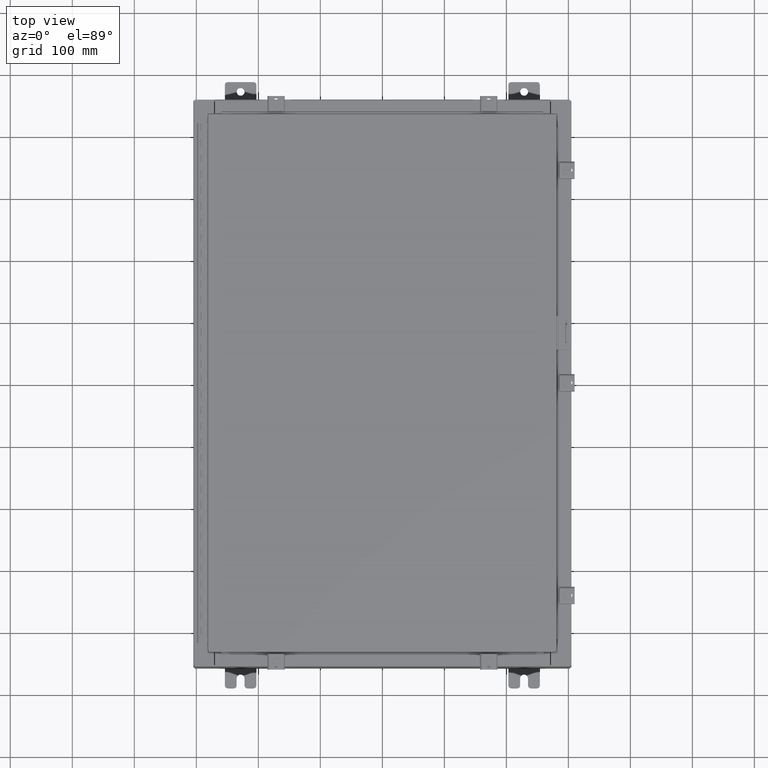
[diagram: clean part render]
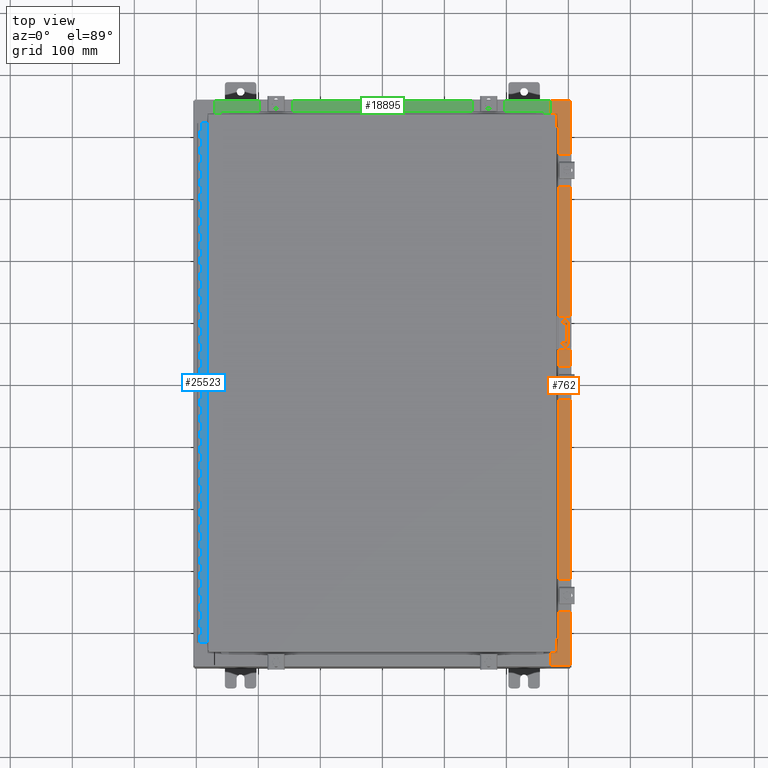
[diagram: same view with three faces highlighted in distinct colors, each labeled with its STEP entity id]
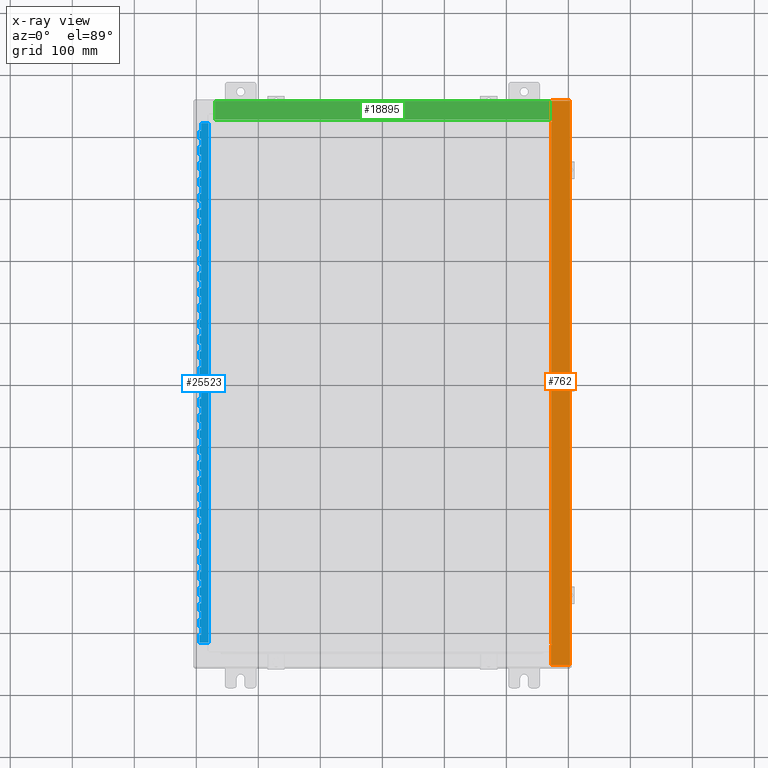
[diagram: x-ray of the same camera — body ghosted, the three highlighted faces saturated]
A machine part, top view with three faces highlighted in distinct colors.
The next image is the same camera in x-ray (body ghosted, the three faces saturated) — at least one of them is partly hidden behind the body in this view.
Their STEP definitions:

[orange] entity #762 — the highlighted planar face has unit normal (-0, 0, -1).
#32 = VECTOR ( 'NONE', #16691, 39.37007874015748100 ) ;
#381 = AXIS2_PLACEMENT_3D ( 'NONE', #24671, #11379, #2382 ) ;
#762 = ADVANCED_FACE ( 'NONE', ( #23455 ), #17547, .F. ) ;
#1069 = LINE ( 'NONE', #20008, #32 ) ;
#1349 = EDGE_CURVE ( 'NONE', #15026, #15097, #40199, .T. ) ;
#1432 = EDGE_CURVE ( 'NONE', #19509, #9743, #5526, .T. ) ;
#2382 = DIRECTION ( 'NONE',  ( 1.000000000000000000, 0.0000000000000000000, 0.0000000000000000000 ) ) ;
#3609 = ORIENTED_EDGE ( 'NONE', *, *, #4263, .F. ) ;
#3693 = LINE ( 'NONE', #3782, #21011 ) ;
#3700 = VERTEX_POINT ( 'NONE', #38121 ) ;
#3782 = CARTESIAN_POINT ( 'NONE',  ( 10.75005000000003000, 16.63110000000000000, 7.925300000000010700 ) ) ;
#4263 = EDGE_CURVE ( 'NONE', #15097, #24261, #16002, .T. ) ;
#4534 = VECTOR ( 'NONE', #8121, 39.37007874015748100 ) ;
#5321 = ORIENTED_EDGE ( 'NONE', *, *, #9215, .F. ) ;
#5526 = LINE ( 'NONE', #20749, #4534 ) ;
#5729 = ORIENTED_EDGE ( 'NONE', *, *, #18626, .F. ) ;
#6051 = CARTESIAN_POINT ( 'NONE',  ( 10.69970000000003000, -16.63110000000000400, 7.925300000000008900 ) ) ;
#6308 = EDGE_CURVE ( 'NONE', #8844, #11803, #34086, .T. ) ;
#7436 = ORIENTED_EDGE ( 'NONE', *, *, #23749, .T. ) ;
#7922 = AXIS2_PLACEMENT_3D ( 'NONE', #15535, #26376, #37503 ) ;
#8095 = ORIENTED_EDGE ( 'NONE', *, *, #16548, .T. ) ;
#8121 = DIRECTION ( 'NONE',  ( -2.156899250920150100E-031, -1.000000000000000000, 1.346156861557936900E-045 ) ) ;
#8662 = EDGE_CURVE ( 'NONE', #19509, #15026, #24215, .T. ) ;
#8844 = VERTEX_POINT ( 'NONE', #39529 ) ;
#9215 = EDGE_CURVE ( 'NONE', #24261, #35011, #14018, .T. ) ;
#9743 = VERTEX_POINT ( 'NONE', #29892 ) ;
#9954 = EDGE_CURVE ( 'NONE', #35011, #8844, #28762, .T. ) ;
#10320 = CARTESIAN_POINT ( 'NONE',  ( 11.91230000000002900, 17.92530000000000000, 7.925300000000000000 ) ) ;
#10561 = VECTOR ( 'NONE', #36896, 39.37007874015748100 ) ;
#11117 = DIRECTION ( 'NONE',  ( 6.241167087353086200E-015, 0.0000000000000000000, 1.000000000000000000 ) ) ;
#11278 = EDGE_CURVE ( 'NONE', #32628, #3700, #27119, .T. ) ;
#11379 = DIRECTION ( 'NONE',  ( 6.241167087353086200E-015, 0.0000000000000000000, 1.000000000000000000 ) ) ;
#11420 = EDGE_CURVE ( 'NONE', #11803, #38577, #3693, .T. ) ;
#11803 = VERTEX_POINT ( 'NONE', #31486 ) ;
#13677 = ORIENTED_EDGE ( 'NONE', *, *, #11420, .F. ) ;
#13881 = AXIS2_PLACEMENT_3D ( 'NONE', #16666, #11117, #19832 ) ;
#14018 = LINE ( 'NONE', #19429, #22692 ) ;
#14194 = ORIENTED_EDGE ( 'NONE', *, *, #11278, .T. ) ;
#15000 = VECTOR ( 'NONE', #28408, 39.37007874015748100 ) ;
#15026 = VERTEX_POINT ( 'NONE', #20168 ) ;
#15097 = VERTEX_POINT ( 'NONE', #36638 ) ;
#15535 = CARTESIAN_POINT ( 'NONE',  ( 4.972393517341145600E-014, 0.0000000000000000000, 7.925300000000073700 ) ) ;
#15756 = DIRECTION ( 'NONE',  ( 1.000000000000000000, 4.340572780400098900E-014, 4.340572780400098900E-014 ) ) ;
#16002 = LINE ( 'NONE', #34483, #15000 ) ;
#16548 = EDGE_CURVE ( 'NONE', #3700, #38577, #1069, .T. ) ;
#16554 = VECTOR ( 'NONE', #15756, 39.37007874015748100 ) ;
#16666 = CARTESIAN_POINT ( 'NONE',  ( 10.75005000000003000, 16.61242500000000200, 7.925300000000010700 ) ) ;
#16691 = DIRECTION ( 'NONE',  ( -2.156899250920150100E-031, -1.000000000000000000, 1.346156861557936900E-045 ) ) ;
#17393 = CARTESIAN_POINT ( 'NONE',  ( 11.91230000000002900, -17.92530000000000000, 7.925300000000000000 ) ) ;
#17531 = LINE ( 'NONE', #25142, #33818 ) ;
#17547 = PLANE ( 'NONE',  #7922 ) ;
#18626 = EDGE_CURVE ( 'NONE', #32628, #23854, #28947, .T. ) ;
#19139 = CARTESIAN_POINT ( 'NONE',  ( 11.91230000000002900, -17.92530000000000000, 7.925300000000000000 ) ) ;
#19429 = CARTESIAN_POINT ( 'NONE',  ( 10.71270000000003000, -16.59375000000000000, 7.925300000000010700 ) ) ;
#19509 = VERTEX_POINT ( 'NONE', #20534 ) ;
#19832 = DIRECTION ( 'NONE',  ( 1.000000000000000000, 0.0000000000000000000, 0.0000000000000000000 ) ) ;
#20008 = CARTESIAN_POINT ( 'NONE',  ( 10.69970000000003000, -2.307817491507028800E-030, 7.925300000000007100 ) ) ;
#20126 = VECTOR ( 'NONE', #40816, 39.37007874015748100 ) ;
#20168 = CARTESIAN_POINT ( 'NONE',  ( 10.75005000000003000, -16.63110000000000000, 7.925300000000007100 ) ) ;
#20380 = EDGE_LOOP ( 'NONE', ( #24575, #36397, #7436, #5729, #14194, #8095, #13677, #35384, #22162, #5321, #3609, #22367 ) ) ;
#20534 = CARTESIAN_POINT ( 'NONE',  ( 10.69970000000003000, -16.63110000000000400, 7.925300000000007100 ) ) ;
#20749 = CARTESIAN_POINT ( 'NONE',  ( 10.69970000000003000, -2.307817491507028800E-030, 7.925300000000007100 ) ) ;
#21011 = VECTOR ( 'NONE', #23266, 39.37007874015748100 ) ;
#21965 = CARTESIAN_POINT ( 'NONE',  ( 10.71270000000003000, 16.59375000000000000, 7.925300000000010700 ) ) ;
#22162 = ORIENTED_EDGE ( 'NONE', *, *, #9954, .F. ) ;
#22223 = CARTESIAN_POINT ( 'NONE',  ( 10.71270000000003000, -16.59375000000000000, 7.925300000000010700 ) ) ;
#22367 = ORIENTED_EDGE ( 'NONE', *, *, #1349, .F. ) ;
#22531 = CARTESIAN_POINT ( 'NONE',  ( 4.972393517341145600E-014, 17.92529999999999600, 7.925300000000073700 ) ) ;
#22685 = DIRECTION ( 'NONE',  ( -0.0000000000000000000, 1.000000000000000000, -0.0000000000000000000 ) ) ;
#22692 = VECTOR ( 'NONE', #22685, 39.37007874015748100 ) ;
#23266 = DIRECTION ( 'NONE',  ( -1.000000000000000000, 4.340572780400098900E-014, -4.340572780400098900E-014 ) ) ;
#23455 = FACE_OUTER_BOUND ( 'NONE', #20380, .T. ) ;
#23749 = EDGE_CURVE ( 'NONE', #9743, #23854, #17531, .T. ) ;
#23854 = VERTEX_POINT ( 'NONE', #19139 ) ;
#24215 = LINE ( 'NONE', #6051, #16554 ) ;
#24261 = VERTEX_POINT ( 'NONE', #22223 ) ;
#24575 = ORIENTED_EDGE ( 'NONE', *, *, #8662, .F. ) ;
#24671 = CARTESIAN_POINT ( 'NONE',  ( 10.75005000000003000, -16.61242500000000200, 7.925300000000010700 ) ) ;
#25142 = CARTESIAN_POINT ( 'NONE',  ( 1.775970877600283600E-014, -17.92529999999998200, 7.925300000000073700 ) ) ;
#26376 = DIRECTION ( 'NONE',  ( -6.241167087353086200E-015, 0.0000000000000000000, -1.000000000000000000 ) ) ;
#27119 = LINE ( 'NONE', #22531, #36794 ) ;
#28408 = DIRECTION ( 'NONE',  ( -1.000000000000000000, 0.0000000000000000000, 0.0000000000000000000 ) ) ;
#28410 = DIRECTION ( 'NONE',  ( 1.000000000000000000, -1.783190596386596200E-015, -6.241167087353087800E-015 ) ) ;
#28762 = LINE ( 'NONE', #37522, #20126 ) ;
#28947 = LINE ( 'NONE', #17393, #10561 ) ;
#29892 = CARTESIAN_POINT ( 'NONE',  ( 10.69970000000003000, -17.92530000000000000, 7.925300000000007100 ) ) ;
#31486 = CARTESIAN_POINT ( 'NONE',  ( 10.75005000000003000, 16.63110000000000000, 7.925300000000007100 ) ) ;
#32628 = VERTEX_POINT ( 'NONE', #10320 ) ;
#33818 = VECTOR ( 'NONE', #28410, 39.37007874015748100 ) ;
#34086 = CIRCLE ( 'NONE', #13881, 0.01867499999999949400 ) ;
#34483 = CARTESIAN_POINT ( 'NONE',  ( 10.75005000000003000, -16.59375000000000000, 7.925300000000010700 ) ) ;
#35011 = VERTEX_POINT ( 'NONE', #21965 ) ;
#35384 = ORIENTED_EDGE ( 'NONE', *, *, #6308, .F. ) ;
#36397 = ORIENTED_EDGE ( 'NONE', *, *, #1432, .T. ) ;
#36638 = CARTESIAN_POINT ( 'NONE',  ( 10.75005000000003000, -16.59375000000000000, 7.925300000000007100 ) ) ;
#36794 = VECTOR ( 'NONE', #42024, 39.37007874015748100 ) ;
#36896 = DIRECTION ( 'NONE',  ( -0.0000000000000000000, -1.000000000000000000, -0.0000000000000000000 ) ) ;
#37503 = DIRECTION ( 'NONE',  ( -1.000000000000000000, 0.0000000000000000000, 6.241167087353086200E-015 ) ) ;
#37522 = CARTESIAN_POINT ( 'NONE',  ( 10.71270000000003000, 16.59375000000000000, 7.925300000000010700 ) ) ;
#38121 = CARTESIAN_POINT ( 'NONE',  ( 10.69970000000003000, 17.92530000000000000, 7.925300000000007100 ) ) ;
#38577 = VERTEX_POINT ( 'NONE', #39374 ) ;
#39374 = CARTESIAN_POINT ( 'NONE',  ( 10.69970000000003000, 16.63110000000000000, 7.925300000000007100 ) ) ;
#39529 = CARTESIAN_POINT ( 'NONE',  ( 10.75005000000003000, 16.59375000000000000, 7.925300000000007100 ) ) ;
#40199 = CIRCLE ( 'NONE', #381, 0.01867499999999949400 ) ;
#40816 = DIRECTION ( 'NONE',  ( 1.000000000000000000, 0.0000000000000000000, 0.0000000000000000000 ) ) ;
#42024 = DIRECTION ( 'NONE',  ( -1.000000000000000000, 0.0000000000000000000, 6.241167087353087800E-015 ) ) ;

[blue] entity #25523 — the highlighted planar face has unit normal (-0, -0, 1).
#41 = ORIENTED_EDGE ( 'NONE', *, *, #41729, .T. ) ;
#152 = VECTOR ( 'NONE', #34740, 39.37007874015748100 ) ;
#165 = CARTESIAN_POINT ( 'NONE',  ( -0.6869999999999982800, 0.5504999999999997700, -16.50000000000000000 ) ) ;
#215 = CARTESIAN_POINT ( 'NONE',  ( -0.6869999999999978300, 0.6754999999999996600, -10.00000000000000000 ) ) ;
#287 = LINE ( 'NONE', #9806, #7873 ) ;
#292 = CARTESIAN_POINT ( 'NONE',  ( -0.6869999999999978300, 0.6754999999999996600, -33.00000000000000000 ) ) ;
#304 = LINE ( 'NONE', #31981, #32853 ) ;
#319 = CARTESIAN_POINT ( 'NONE',  ( -0.6869999999999973900, 0.8004999999999995500, -28.00000000000000000 ) ) ;
#406 = LINE ( 'NONE', #33760, #7989 ) ;
#463 = LINE ( 'NONE', #16387, #34033 ) ;
#507 = LINE ( 'NONE', #3140, #34079 ) ;
#520 = DIRECTION ( 'NONE',  ( 0.0000000000000000000, -0.0000000000000000000, -1.000000000000000000 ) ) ;
#582 = CARTESIAN_POINT ( 'NONE',  ( -0.6869999999999982800, 0.5504999999999997700, -19.00000000000000000 ) ) ;
#630 = DIRECTION ( 'NONE',  ( -3.389037039080723100E-015, -1.000000000000000000, 0.0000000000000000000 ) ) ;
#687 = VECTOR ( 'NONE', #30142, 39.37007874015748100 ) ;
#693 = LINE ( 'NONE', #10232, #34275 ) ;
#702 = CARTESIAN_POINT ( 'NONE',  ( -0.6869999999999978300, 0.6754999999999996600, -11.00000000000000000 ) ) ;
#735 = VECTOR ( 'NONE', #21113, 39.37007874015748100 ) ;
#740 = CARTESIAN_POINT ( 'NONE',  ( -0.6869999999999978300, 0.6754999999999996600, -8.500000000000000000 ) ) ;
#774 = VERTEX_POINT ( 'NONE', #17403 ) ;
#813 = VERTEX_POINT ( 'NONE', #14828 ) ;
#855 = VERTEX_POINT ( 'NONE', #1551 ) ;
#885 = ORIENTED_EDGE ( 'NONE', *, *, #4816, .F. ) ;
#893 = CARTESIAN_POINT ( 'NONE',  ( -0.6869999999999973900, 0.8004999999999995500, -23.99999999999999600 ) ) ;
#902 = LINE ( 'NONE', #20030, #34481 ) ;
#996 = VECTOR ( 'NONE', #2097, 39.37007874015748100 ) ;
#1159 = CARTESIAN_POINT ( 'NONE',  ( -0.6869999999999978300, 0.6754999999999996600, -20.50000000000000400 ) ) ;
#1175 = EDGE_CURVE ( 'NONE', #38455, #19843, #32058, .T. ) ;
#1225 = VECTOR ( 'NONE', #10847, 39.37007874015748100 ) ;
#1285 = CARTESIAN_POINT ( 'NONE',  ( -0.6869999999999973900, 0.8004999999999995500, -1.000000000000000000 ) ) ;
#1291 = EDGE_CURVE ( 'NONE', #7446, #6601, #9577, .T. ) ;
#1304 = CARTESIAN_POINT ( 'NONE',  ( -0.6869999999999978300, 0.6754999999999996600, -17.00000000000000000 ) ) ;
#1313 = VERTEX_POINT ( 'NONE', #1159 ) ;
#1351 = VECTOR ( 'NONE', #30929, 39.37007874015748100 ) ;
#1375 = VECTOR ( 'NONE', #26189, 39.37007874015748100 ) ;
#1417 = CARTESIAN_POINT ( 'NONE',  ( -0.6869999999999978300, 0.6754999999999996600, -3.500000000000000000 ) ) ;
#1441 = CARTESIAN_POINT ( 'NONE',  ( -0.6869999999999982800, 0.5504999999999997700, -31.50000000000000400 ) ) ;
#1482 = ORIENTED_EDGE ( 'NONE', *, *, #24487, .F. ) ;
#1541 = CARTESIAN_POINT ( 'NONE',  ( -0.6869999999999982800, 0.5504999999999997700, -10.50000000000000000 ) ) ;
#1551 = CARTESIAN_POINT ( 'NONE',  ( -0.6869999999999982800, 0.5504999999999997700, -24.99999999999999600 ) ) ;
#1584 = VERTEX_POINT ( 'NONE', #14635 ) ;
#1661 = VECTOR ( 'NONE', #28451, 39.37007874015748100 ) ;
#1726 = EDGE_CURVE ( 'NONE', #39461, #26093, #11597, .T. ) ;
#1728 = ORIENTED_EDGE ( 'NONE', *, *, #16686, .F. ) ;
#1843 = VECTOR ( 'NONE', #15722, 39.37007874015748100 ) ;
#1859 = EDGE_CURVE ( 'NONE', #28584, #36615, #16178, .T. ) ;
#1949 = VERTEX_POINT ( 'NONE', #5631 ) ;
#2007 = VECTOR ( 'NONE', #2210, 39.37007874015748100 ) ;
#2058 = EDGE_LOOP ( 'NONE', ( #40230, #19891, #27045, #16317, #4327, #885, #41833, #34841, #10707, #21773, #3247, #33384, #2263, #31070, #22458, #25493, #40780, #18564, #32898, #14308, #32311, #17876, #30526, #1728, #6032, #25631, #4528, #20908, #15273, #5575, #17526, #41039, #21437, #35840, #7628, #37598, #9754, #7852, #40388, #12587, #41, #14735, #39271, #16723, #5845, #12193, #41033, #32069, #35034, #15889, #35368, #21492, #2460, #2101, #18228, #19376, #9729, #21627, #14565, #8601, #13755, #8500, #14861, #33796, #36241, #17178, #23402, #16651, #41730, #36255, #19066, #21681, #18800, #36161, #22230, #38055, #32247, #10280, #22228, #26892, #23776, #22875, #12268, #16468, #10427, #3813, #13685, #11996, #16699, #3727, #25070, #29960, #10025, #13524, #12612, #3682, #9308, #25213, #25194, #6033, #34427, #9029, #35763, #39824, #2430, #38078, #29333, #1482, #29187, #40412, #5314, #3365, #38116, #31851, #22291, #25566, #20957, #34472, #22264, #35426, #42132, #31624, #31230, #11359, #18578, #28941, #21630, #20339, #21952, #10682, #40576, #21635, #25791, #14618 ) ) ;
#2088 = CARTESIAN_POINT ( 'NONE',  ( -0.6869999999999973900, 0.8004999999999995500, -26.50000000000000400 ) ) ;
#2097 = DIRECTION ( 'NONE',  ( -3.389037039080723100E-015, -1.000000000000000000, 0.0000000000000000000 ) ) ;
#2101 = ORIENTED_EDGE ( 'NONE', *, *, #24960, .F. ) ;
#2156 = DIRECTION ( 'NONE',  ( 0.0000000000000000000, -0.0000000000000000000, -1.000000000000000000 ) ) ;
#2162 = VERTEX_POINT ( 'NONE', #16780 ) ;
#2210 = DIRECTION ( 'NONE',  ( 3.389037039080723100E-015, 1.000000000000000000, -0.0000000000000000000 ) ) ;
#2263 = ORIENTED_EDGE ( 'NONE', *, *, #13130, .T. ) ;
#2282 = VECTOR ( 'NONE', #19729, 39.37007874015748100 ) ;
#2322 = CARTESIAN_POINT ( 'NONE',  ( -0.6869999999999973900, 0.8004999999999995500, -14.00000000000000000 ) ) ;
#2424 = LINE ( 'NONE', #13816, #36002 ) ;
#2430 = ORIENTED_EDGE ( 'NONE', *, *, #8108, .T. ) ;
#2434 = CARTESIAN_POINT ( 'NONE',  ( -0.6869999999999982800, 0.5504999999999997700, -23.99999999999999600 ) ) ;
#2460 = ORIENTED_EDGE ( 'NONE', *, *, #22516, .T. ) ;
#2465 = DIRECTION ( 'NONE',  ( 0.0000000000000000000, 0.0000000000000000000, 1.000000000000000000 ) ) ;
#2497 = CARTESIAN_POINT ( 'NONE',  ( -0.6869999999999982800, 0.5504999999999997700, -15.50000000000000000 ) ) ;
#2532 = VERTEX_POINT ( 'NONE', #17960 ) ;
#2534 = VECTOR ( 'NONE', #19800, 39.37007874015748100 ) ;
#2552 = CARTESIAN_POINT ( 'NONE',  ( -0.6869999999999973900, 0.8004999999999995500, -2.999999999999999600 ) ) ;
#2556 = DIRECTION ( 'NONE',  ( -3.389037039080723100E-015, -1.000000000000000000, 0.0000000000000000000 ) ) ;
#2574 = VERTEX_POINT ( 'NONE', #34175 ) ;
#2585 = CARTESIAN_POINT ( 'NONE',  ( -0.6869999999999982800, 0.5504999999999997700, -1.499999999999999800 ) ) ;
#2649 = LINE ( 'NONE', #25049, #18931 ) ;
#2692 = LINE ( 'NONE', #28794, #20022 ) ;
#2812 = EDGE_CURVE ( 'NONE', #22689, #22355, #33438, .T. ) ;
#2911 = EDGE_CURVE ( 'NONE', #18476, #22689, #38013, .T. ) ;
#2930 = CARTESIAN_POINT ( 'NONE',  ( -0.6869999999999978300, 0.6754999999999996600, -20.00000000000000000 ) ) ;
#3015 = LINE ( 'NONE', #32979, #36611 ) ;
#3025 = CARTESIAN_POINT ( 'NONE',  ( -0.6869999999999978300, 0.6754999999999996600, -33.00000000000000000 ) ) ;
#3132 = LINE ( 'NONE', #893, #36718 ) ;
#3140 = CARTESIAN_POINT ( 'NONE',  ( -0.6869999999999973900, 0.8004999999999995500, -10.50000000000000000 ) ) ;
#3247 = ORIENTED_EDGE ( 'NONE', *, *, #1175, .F. ) ;
#3261 = LINE ( 'NONE', #21119, #11871 ) ;
#3285 = LINE ( 'NONE', #29396, #2282 ) ;
#3365 = ORIENTED_EDGE ( 'NONE', *, *, #37507, .F. ) ;
#3372 = EDGE_CURVE ( 'NONE', #32911, #28775, #15077, .T. ) ;
#3379 = LINE ( 'NONE', #20155, #19656 ) ;
#3407 = CARTESIAN_POINT ( 'NONE',  ( -0.6869999999999982800, 0.5504999999999997700, -26.00000000000000000 ) ) ;
#3413 = CARTESIAN_POINT ( 'NONE',  ( -0.6869999999999982800, 0.5504999999999997700, -23.50000000000000000 ) ) ;
#3436 = EDGE_CURVE ( 'NONE', #33718, #28584, #3379, .T. ) ;
#3483 = EDGE_CURVE ( 'NONE', #38132, #2162, #18631, .T. ) ;
#3501 = CARTESIAN_POINT ( 'NONE',  ( -0.6869999999999982800, 0.5504999999999997700, -2.000000000000000000 ) ) ;
#3518 = VERTEX_POINT ( 'NONE', #7429 ) ;
#3584 = VECTOR ( 'NONE', #35742, 39.37007874015748100 ) ;
#3622 = EDGE_CURVE ( 'NONE', #39669, #5471, #39518, .T. ) ;
#3682 = ORIENTED_EDGE ( 'NONE', *, *, #25760, .F. ) ;
#3697 = VECTOR ( 'NONE', #25552, 39.37007874015748100 ) ;
#3722 = CARTESIAN_POINT ( 'NONE',  ( -0.6869999999999978300, 0.6754999999999996600, -13.50000000000000000 ) ) ;
#3727 = ORIENTED_EDGE ( 'NONE', *, *, #39526, .F. ) ;
#3729 = EDGE_CURVE ( 'NONE', #29135, #10410, #26754, .T. ) ;
#3755 = LINE ( 'NONE', #27208, #20057 ) ;
#3790 = VECTOR ( 'NONE', #41987, 39.37007874015748100 ) ;
#3811 = VECTOR ( 'NONE', #13302, 39.37007874015748100 ) ;
#3813 = ORIENTED_EDGE ( 'NONE', *, *, #36751, .F. ) ;
#3863 = VECTOR ( 'NONE', #40057, 39.37007874015748100 ) ;
#3932 = CARTESIAN_POINT ( 'NONE',  ( -0.6869999999999982800, 0.5504999999999997700, -17.00000000000000000 ) ) ;
#4022 = VERTEX_POINT ( 'NONE', #23860 ) ;
#4071 = CARTESIAN_POINT ( 'NONE',  ( -0.6869999999999978300, 0.6754999999999996600, -33.00000000000000000 ) ) ;
#4149 = DIRECTION ( 'NONE',  ( 3.389037039080723100E-015, 1.000000000000000000, -0.0000000000000000000 ) ) ;
#4203 = DIRECTION ( 'NONE',  ( 0.0000000000000000000, -0.0000000000000000000, -1.000000000000000000 ) ) ;
#4210 = VECTOR ( 'NONE', #7107, 39.37007874015748100 ) ;
#4271 = CARTESIAN_POINT ( 'NONE',  ( -0.6869999999999978300, 0.6754999999999996600, -17.99999999999999600 ) ) ;
#4316 = DIRECTION ( 'NONE',  ( 3.389037039080723100E-015, 1.000000000000000000, -0.0000000000000000000 ) ) ;
#4327 = ORIENTED_EDGE ( 'NONE', *, *, #15019, .T. ) ;
#4351 = EDGE_CURVE ( 'NONE', #2532, #9450, #36880, .T. ) ;
#4363 = LINE ( 'NONE', #21504, #21652 ) ;
#4399 = LINE ( 'NONE', #30375, #20704 ) ;
#4401 = LINE ( 'NONE', #12521, #19675 ) ;
#4526 = DIRECTION ( 'NONE',  ( 3.389037039080723100E-015, 1.000000000000000000, -0.0000000000000000000 ) ) ;
#4528 = ORIENTED_EDGE ( 'NONE', *, *, #20712, .F. ) ;
#4576 = DIRECTION ( 'NONE',  ( -3.389037039080723100E-015, -1.000000000000000000, 0.0000000000000000000 ) ) ;
#4676 = LINE ( 'NONE', #27934, #20975 ) ;
#4683 = EDGE_CURVE ( 'NONE', #15349, #42136, #31280, .T. ) ;
#4816 = EDGE_CURVE ( 'NONE', #23728, #774, #28200, .T. ) ;
#4838 = DIRECTION ( 'NONE',  ( 0.0000000000000000000, 0.0000000000000000000, 1.000000000000000000 ) ) ;
#4842 = DIRECTION ( 'NONE',  ( 3.389037039080723100E-015, 1.000000000000000000, -0.0000000000000000000 ) ) ;
#4891 = VECTOR ( 'NONE', #23390, 39.37007874015748100 ) ;
#4904 = EDGE_CURVE ( 'NONE', #29135, #5176, #16437, .T. ) ;
#4922 = VERTEX_POINT ( 'NONE', #20726 ) ;
#5018 = DIRECTION ( 'NONE',  ( 0.0000000000000000000, -0.0000000000000000000, -1.000000000000000000 ) ) ;
#5032 = EDGE_CURVE ( 'NONE', #36037, #36126, #26634, .T. ) ;
#5078 = EDGE_CURVE ( 'NONE', #7164, #34391, #16954, .T. ) ;
#5176 = VERTEX_POINT ( 'NONE', #13995 ) ;
#5206 = CARTESIAN_POINT ( 'NONE',  ( -0.6869999999999982800, 0.5504999999999997700, -5.000000000000000000 ) ) ;
#5213 = DIRECTION ( 'NONE',  ( -3.389037039080723100E-015, -1.000000000000000000, 0.0000000000000000000 ) ) ;
#5241 = VECTOR ( 'NONE', #36225, 39.37007874015748100 ) ;
#5314 = ORIENTED_EDGE ( 'NONE', *, *, #35516, .F. ) ;
#5316 = DIRECTION ( 'NONE',  ( -3.389037039080723100E-015, -1.000000000000000000, 0.0000000000000000000 ) ) ;
#5357 = EDGE_CURVE ( 'NONE', #5700, #22123, #7307, .T. ) ;
#5382 = VECTOR ( 'NONE', #34682, 39.37007874015748100 ) ;
#5471 = VERTEX_POINT ( 'NONE', #30662 ) ;
#5522 = DIRECTION ( 'NONE',  ( 3.389037039080723100E-015, 1.000000000000000000, -0.0000000000000000000 ) ) ;
#5575 = ORIENTED_EDGE ( 'NONE', *, *, #1726, .F. ) ;
#5602 = VERTEX_POINT ( 'NONE', #36562 ) ;
#5604 = CARTESIAN_POINT ( 'NONE',  ( -0.6869999999999982800, 0.5504999999999997700, -8.500000000000000000 ) ) ;
#5609 = CARTESIAN_POINT ( 'NONE',  ( -0.6869999999999982800, 0.5504999999999997700, -22.00000000000000000 ) ) ;
#5631 = CARTESIAN_POINT ( 'NONE',  ( -0.6869999999999982800, 0.5504999999999997700, -21.00000000000000000 ) ) ;
#5665 = LINE ( 'NONE', #34017, #39316 ) ;
#5694 = EDGE_CURVE ( 'NONE', #19843, #18383, #3755, .T. ) ;
#5700 = VERTEX_POINT ( 'NONE', #22455 ) ;
#5780 = DIRECTION ( 'NONE',  ( 3.389037039080723100E-015, 1.000000000000000000, -0.0000000000000000000 ) ) ;
#5807 = CARTESIAN_POINT ( 'NONE',  ( -0.6869999999999982800, 0.5504999999999997700, -4.500000000000000000 ) ) ;
#5824 = EDGE_CURVE ( 'NONE', #19609, #24977, #35311, .T. ) ;
#5845 = ORIENTED_EDGE ( 'NONE', *, *, #3729, .T. ) ;
#5871 = LINE ( 'NONE', #20144, #4891 ) ;
#5926 = VERTEX_POINT ( 'NONE', #582 ) ;
#6001 = DIRECTION ( 'NONE',  ( 0.0000000000000000000, 0.0000000000000000000, 1.000000000000000000 ) ) ;
#6032 = ORIENTED_EDGE ( 'NONE', *, *, #27534, .T. ) ;
#6033 = ORIENTED_EDGE ( 'NONE', *, *, #26362, .F. ) ;
#6059 = EDGE_CURVE ( 'NONE', #8329, #855, #33733, .T. ) ;
#6062 = EDGE_CURVE ( 'NONE', #8229, #2574, #26102, .T. ) ;
#6135 = EDGE_CURVE ( 'NONE', #33335, #16429, #25100, .T. ) ;
#6253 = CARTESIAN_POINT ( 'NONE',  ( -0.6869999999999978300, 0.6754999999999996600, -1.499999999999999800 ) ) ;
#6413 = VERTEX_POINT ( 'NONE', #30376 ) ;
#6456 = DIRECTION ( 'NONE',  ( 3.389037039080723100E-015, 1.000000000000000000, -0.0000000000000000000 ) ) ;
#6467 = CARTESIAN_POINT ( 'NONE',  ( -0.6869999999999982800, 0.5504999999999997700, -25.50000000000000400 ) ) ;
#6483 = EDGE_CURVE ( 'NONE', #1313, #18506, #18299, .T. ) ;
#6510 = CARTESIAN_POINT ( 'NONE',  ( -0.6869999999999973900, 0.8004999999999995500, -17.99999999999999600 ) ) ;
#6555 = LINE ( 'NONE', #29193, #30553 ) ;
#6601 = VERTEX_POINT ( 'NONE', #38899 ) ;
#6652 = CARTESIAN_POINT ( 'NONE',  ( -0.6869999999999982800, 0.5504999999999997700, -1.000000000000000000 ) ) ;
#6659 = CARTESIAN_POINT ( 'NONE',  ( -0.6869999999999978300, 0.6754999999999996600, -33.00000000000000000 ) ) ;
#6764 = EDGE_CURVE ( 'NONE', #9071, #8329, #34034, .T. ) ;
#6782 = CARTESIAN_POINT ( 'NONE',  ( -0.6869999999999982800, 0.5504999999999997700, -3.500000000000000000 ) ) ;
#6828 = CARTESIAN_POINT ( 'NONE',  ( -0.6869999999999978300, 0.6754999999999996600, -5.500000000000000000 ) ) ;
#6864 = VERTEX_POINT ( 'NONE', #32538 ) ;
#6867 = CARTESIAN_POINT ( 'NONE',  ( -0.6869999999999982800, 0.5504999999999997700, -28.50000000000000000 ) ) ;
#6978 = VECTOR ( 'NONE', #33906, 39.37007874015748100 ) ;
#6993 = DIRECTION ( 'NONE',  ( 0.0000000000000000000, -0.0000000000000000000, -1.000000000000000000 ) ) ;
#7061 = VECTOR ( 'NONE', #13777, 39.37007874015748100 ) ;
#7107 = DIRECTION ( 'NONE',  ( -3.389037039080723100E-015, -1.000000000000000000, 0.0000000000000000000 ) ) ;
#7139 = DIRECTION ( 'NONE',  ( 0.0000000000000000000, 0.0000000000000000000, 1.000000000000000000 ) ) ;
#7164 = VERTEX_POINT ( 'NONE', #37357 ) ;
#7203 = CARTESIAN_POINT ( 'NONE',  ( -0.6869999999999978300, 0.6754999999999996600, -33.00000000000000000 ) ) ;
#7307 = LINE ( 'NONE', #165, #735 ) ;
#7345 = VERTEX_POINT ( 'NONE', #25402 ) ;
#7423 = VECTOR ( 'NONE', #630, 39.37007874015748100 ) ;
#7429 = CARTESIAN_POINT ( 'NONE',  ( -0.6869999999999978300, 0.6754999999999996600, -5.000000000000000000 ) ) ;
#7446 = VERTEX_POINT ( 'NONE', #32353 ) ;
#7462 = VERTEX_POINT ( 'NONE', #32483 ) ;
#7505 = VERTEX_POINT ( 'NONE', #215 ) ;
#7548 = CARTESIAN_POINT ( 'NONE',  ( -0.6869999999999978300, 0.6754999999999996600, -2.999999999999999600 ) ) ;
#7623 = VECTOR ( 'NONE', #28645, 39.37007874015748100 ) ;
#7628 = ORIENTED_EDGE ( 'NONE', *, *, #6059, .F. ) ;
#7630 = EDGE_CURVE ( 'NONE', #30342, #9124, #2424, .T. ) ;
#7747 = VECTOR ( 'NONE', #40863, 39.37007874015748100 ) ;
#7852 = ORIENTED_EDGE ( 'NONE', *, *, #12150, .F. ) ;
#7873 = VECTOR ( 'NONE', #16231, 39.37007874015748100 ) ;
#7947 = EDGE_CURVE ( 'NONE', #31212, #13938, #32404, .T. ) ;
#7989 = VECTOR ( 'NONE', #14245, 39.37007874015748100 ) ;
#8108 = EDGE_CURVE ( 'NONE', #12408, #36957, #18652, .T. ) ;
#8128 = EDGE_CURVE ( 'NONE', #31940, #26093, #34956, .T. ) ;
#8229 = VERTEX_POINT ( 'NONE', #740 ) ;
#8236 = DIRECTION ( 'NONE',  ( 3.389037039080723100E-015, 1.000000000000000000, -0.0000000000000000000 ) ) ;
#8251 = VECTOR ( 'NONE', #2556, 39.37007874015748100 ) ;
#8288 = DIRECTION ( 'NONE',  ( 0.0000000000000000000, -0.0000000000000000000, -1.000000000000000000 ) ) ;
#8295 = LINE ( 'NONE', #13095, #33259 ) ;
#8329 = VERTEX_POINT ( 'NONE', #20653 ) ;
#8333 = CARTESIAN_POINT ( 'NONE',  ( -0.6869999999999973900, 0.8004999999999995500, -1.499999999999999800 ) ) ;
#8374 = VERTEX_POINT ( 'NONE', #1304 ) ;
#8427 = EDGE_CURVE ( 'NONE', #13669, #23728, #34421, .T. ) ;
#8443 = EDGE_CURVE ( 'NONE', #34811, #29942, #16064, .T. ) ;
#8446 = LINE ( 'NONE', #39478, #7423 ) ;
#8476 = VECTOR ( 'NONE', #4316, 39.37007874015748100 ) ;
#8500 = ORIENTED_EDGE ( 'NONE', *, *, #28668, .F. ) ;
#8515 = CARTESIAN_POINT ( 'NONE',  ( -0.6869999999999982800, 0.5504999999999997700, -12.99999999999999800 ) ) ;
#8601 = ORIENTED_EDGE ( 'NONE', *, *, #5824, .F. ) ;
#8615 = EDGE_CURVE ( 'NONE', #21284, #18621, #9904, .T. ) ;
#8630 = LINE ( 'NONE', #18822, #33609 ) ;
#8639 = EDGE_CURVE ( 'NONE', #28999, #38467, #304, .T. ) ;
#8710 = DIRECTION ( 'NONE',  ( -3.389037039080723100E-015, -1.000000000000000000, 0.0000000000000000000 ) ) ;
#8729 = CARTESIAN_POINT ( 'NONE',  ( -0.6869999999999982800, 0.5504999999999997700, -32.00000000000000000 ) ) ;
#8815 = DIRECTION ( 'NONE',  ( 3.389037039080723100E-015, 1.000000000000000000, -0.0000000000000000000 ) ) ;
#8816 = VERTEX_POINT ( 'NONE', #13278 ) ;
#8862 = CARTESIAN_POINT ( 'NONE',  ( -0.6869999999999978300, 0.6754999999999996600, -24.99999999999999600 ) ) ;
#8910 = DIRECTION ( 'NONE',  ( -3.389037039080723100E-015, -1.000000000000000000, 0.0000000000000000000 ) ) ;
#8961 = EDGE_CURVE ( 'NONE', #5176, #4922, #22642, .T. ) ;
#9001 = CARTESIAN_POINT ( 'NONE',  ( -0.6869999999999978300, 0.6754999999999996600, -31.50000000000000400 ) ) ;
#9029 = ORIENTED_EDGE ( 'NONE', *, *, #23626, .F. ) ;
#9057 = DIRECTION ( 'NONE',  ( 0.0000000000000000000, -0.0000000000000000000, -1.000000000000000000 ) ) ;
#9071 = VERTEX_POINT ( 'NONE', #15453 ) ;
#9099 = CARTESIAN_POINT ( 'NONE',  ( -0.6869999999999978300, 0.6754999999999996600, -33.00000000000000000 ) ) ;
#9124 = VERTEX_POINT ( 'NONE', #31955 ) ;
#9177 = DIRECTION ( 'NONE',  ( 0.0000000000000000000, 0.0000000000000000000, 1.000000000000000000 ) ) ;
#9246 = LINE ( 'NONE', #28585, #8251 ) ;
#9308 = ORIENTED_EDGE ( 'NONE', *, *, #31673, .T. ) ;
#9450 = VERTEX_POINT ( 'NONE', #10970 ) ;
#9577 = LINE ( 'NONE', #27657, #34594 ) ;
#9705 = EDGE_CURVE ( 'NONE', #14274, #39247, #20646, .T. ) ;
#9729 = ORIENTED_EDGE ( 'NONE', *, *, #35079, .T. ) ;
#9733 = CARTESIAN_POINT ( 'NONE',  ( -0.6869999999999973900, 0.8004999999999995500, -0.5000000000000000000 ) ) ;
#9754 = ORIENTED_EDGE ( 'NONE', *, *, #22863, .T. ) ;
#9769 = FACE_OUTER_BOUND ( 'NONE', #2058, .T. ) ;
#9778 = DIRECTION ( 'NONE',  ( 3.389037039080723100E-015, 1.000000000000000000, -0.0000000000000000000 ) ) ;
#9806 = CARTESIAN_POINT ( 'NONE',  ( -0.6869999999999973900, 0.8004999999999995500, -5.000000000000000000 ) ) ;
#9855 = DIRECTION ( 'NONE',  ( 3.389037039080723100E-015, 1.000000000000000000, -0.0000000000000000000 ) ) ;
#9856 = VECTOR ( 'NONE', #15510, 39.37007874015748100 ) ;
#9904 = LINE ( 'NONE', #2552, #26251 ) ;
#9944 = CARTESIAN_POINT ( 'NONE',  ( -0.6869999999999982800, 0.5504999999999997700, -2.500000000000000000 ) ) ;
#9945 = VECTOR ( 'NONE', #29927, 39.37007874015748100 ) ;
#9978 = CARTESIAN_POINT ( 'NONE',  ( -0.6869999999999973900, 0.8004999999999995500, -2.500000000000000000 ) ) ;
#10009 = CARTESIAN_POINT ( 'NONE',  ( -0.6869999999999978300, 0.6754999999999996600, -9.000000000000000000 ) ) ;
#10025 = ORIENTED_EDGE ( 'NONE', *, *, #13025, .T. ) ;
#10232 = CARTESIAN_POINT ( 'NONE',  ( -0.6869999999999978300, 0.6754999999999996600, -33.00000000000000000 ) ) ;
#10234 = LINE ( 'NONE', #25186, #34203 ) ;
#10258 = EDGE_CURVE ( 'NONE', #39669, #18621, #3285, .T. ) ;
#10280 = ORIENTED_EDGE ( 'NONE', *, *, #2812, .F. ) ;
#10281 = VERTEX_POINT ( 'NONE', #3501 ) ;
#10305 = LINE ( 'NONE', #32894, #35307 ) ;
#10403 = CARTESIAN_POINT ( 'NONE',  ( -0.6869999999999982800, 0.5504999999999997700, -30.50000000000000400 ) ) ;
#10410 = VERTEX_POINT ( 'NONE', #23703 ) ;
#10427 = ORIENTED_EDGE ( 'NONE', *, *, #34129, .T. ) ;
#10430 = VECTOR ( 'NONE', #8236, 39.37007874015748100 ) ;
#10434 = LINE ( 'NONE', #35305, #36446 ) ;
#10462 = VECTOR ( 'NONE', #41568, 39.37007874015748100 ) ;
#10489 = CARTESIAN_POINT ( 'NONE',  ( -0.6870000000000022800, -0.6245000000000003900, 0.0000000000000000000 ) ) ;
#10500 = EDGE_CURVE ( 'NONE', #28999, #30788, #27699, .T. ) ;
#10579 = LINE ( 'NONE', #37755, #2007 ) ;
#10619 = VECTOR ( 'NONE', #37129, 39.37007874015748100 ) ;
#10680 = LINE ( 'NONE', #32655, #35674 ) ;
#10682 = ORIENTED_EDGE ( 'NONE', *, *, #41423, .F. ) ;
#10707 = ORIENTED_EDGE ( 'NONE', *, *, #27875, .T. ) ;
#10847 = DIRECTION ( 'NONE',  ( 3.389037039080723100E-015, 1.000000000000000000, -0.0000000000000000000 ) ) ;
#10926 = DIRECTION ( 'NONE',  ( 0.0000000000000000000, 0.0000000000000000000, 1.000000000000000000 ) ) ;
#10930 = CARTESIAN_POINT ( 'NONE',  ( -0.6869999999999978300, 0.6754999999999996600, -33.00000000000000000 ) ) ;
#10970 = CARTESIAN_POINT ( 'NONE',  ( -0.6869999999999978300, 0.6754999999999996600, -4.000000000000000000 ) ) ;
#11109 = CARTESIAN_POINT ( 'NONE',  ( -0.6869999999999973900, 0.8004999999999995500, -22.50000000000000000 ) ) ;
#11220 = DIRECTION ( 'NONE',  ( 0.0000000000000000000, -0.0000000000000000000, -1.000000000000000000 ) ) ;
#11238 = DIRECTION ( 'NONE',  ( 0.0000000000000000000, -0.0000000000000000000, -1.000000000000000000 ) ) ;
#11359 = ORIENTED_EDGE ( 'NONE', *, *, #29827, .F. ) ;
#11364 = DIRECTION ( 'NONE',  ( 0.0000000000000000000, -0.0000000000000000000, -1.000000000000000000 ) ) ;
#11443 = CARTESIAN_POINT ( 'NONE',  ( -0.6869999999999982800, 0.5504999999999997700, -14.49999999999999800 ) ) ;
#11540 = CARTESIAN_POINT ( 'NONE',  ( -0.6869999999999982800, 0.5504999999999997700, -27.50000000000000000 ) ) ;
#11580 = DIRECTION ( 'NONE',  ( -3.389037039080723100E-015, -1.000000000000000000, 0.0000000000000000000 ) ) ;
#11587 = EDGE_CURVE ( 'NONE', #855, #38467, #41838, .T. ) ;
#11597 = LINE ( 'NONE', #17190, #37606 ) ;
#11748 = LINE ( 'NONE', #6510, #36720 ) ;
#11763 = CARTESIAN_POINT ( 'NONE',  ( -0.6869999999999973900, 0.8004999999999995500, -29.99999999999999600 ) ) ;
#11842 = EDGE_CURVE ( 'NONE', #18852, #7345, #32661, .T. ) ;
#11871 = VECTOR ( 'NONE', #40612, 39.37007874015748100 ) ;
#11907 = DIRECTION ( 'NONE',  ( -3.389037039080723100E-015, -1.000000000000000000, 0.0000000000000000000 ) ) ;
#11923 = VECTOR ( 'NONE', #26454, 39.37007874015748100 ) ;
#11996 = ORIENTED_EDGE ( 'NONE', *, *, #31920, .F. ) ;
#12150 = EDGE_CURVE ( 'NONE', #39247, #34135, #3132, .T. ) ;
#12161 = LINE ( 'NONE', #25923, #3584 ) ;
#12182 = CARTESIAN_POINT ( 'NONE',  ( -0.6869999999999978300, 0.6754999999999996600, -33.00000000000000000 ) ) ;
#12193 = ORIENTED_EDGE ( 'NONE', *, *, #33286, .F. ) ;
#12268 = ORIENTED_EDGE ( 'NONE', *, *, #37866, .F. ) ;
#12272 = VERTEX_POINT ( 'NONE', #9001 ) ;
#12286 = LINE ( 'NONE', #28687, #3697 ) ;
#12345 = CARTESIAN_POINT ( 'NONE',  ( -0.6869999999999973900, 0.8004999999999995500, -11.50000000000000000 ) ) ;
#12384 = EDGE_CURVE ( 'NONE', #18953, #32828, #30622, .T. ) ;
#12402 = DIRECTION ( 'NONE',  ( 3.389037039080723100E-015, 1.000000000000000000, -0.0000000000000000000 ) ) ;
#12408 = VERTEX_POINT ( 'NONE', #22827 ) ;
#12456 = CARTESIAN_POINT ( 'NONE',  ( -0.6869999999999982800, 0.5504999999999997700, -31.00000000000000000 ) ) ;
#12521 = CARTESIAN_POINT ( 'NONE',  ( -0.6869999999999978300, 0.6754999999999996600, -33.00000000000000000 ) ) ;
#12582 = VECTOR ( 'NONE', #17117, 39.37007874015748100 ) ;
#12587 = ORIENTED_EDGE ( 'NONE', *, *, #14231, .F. ) ;
#12590 = CARTESIAN_POINT ( 'NONE',  ( -0.6869999999999978300, 0.6754999999999996600, -28.99999999999999600 ) ) ;
#12606 = CARTESIAN_POINT ( 'NONE',  ( -0.6869999999999978300, 0.6754999999999996600, -14.49999999999999800 ) ) ;
#12612 = ORIENTED_EDGE ( 'NONE', *, *, #3372, .F. ) ;
#12707 = DIRECTION ( 'NONE',  ( 0.0000000000000000000, 0.0000000000000000000, 1.000000000000000000 ) ) ;
#12835 = CARTESIAN_POINT ( 'NONE',  ( -0.6869999999999973900, 0.8004999999999995500, -14.49999999999999800 ) ) ;
#12948 = EDGE_CURVE ( 'NONE', #28738, #18476, #8446, .T. ) ;
#12978 = LINE ( 'NONE', #22236, #37990 ) ;
#13025 = EDGE_CURVE ( 'NONE', #23354, #7505, #4399, .T. ) ;
#13055 = CARTESIAN_POINT ( 'NONE',  ( -0.6869999999999982800, 0.5504999999999997700, -31.50000000000000400 ) ) ;
#13095 = CARTESIAN_POINT ( 'NONE',  ( -0.6869999999999973900, 0.8004999999999995500, -6.000000000000000900 ) ) ;
#13130 = EDGE_CURVE ( 'NONE', #31975, #7462, #17626, .T. ) ;
#13201 = CARTESIAN_POINT ( 'NONE',  ( -0.6869999999999982800, 0.5504999999999997700, -14.00000000000000000 ) ) ;
#13217 = VECTOR ( 'NONE', #16134, 39.37007874015748100 ) ;
#13248 = DIRECTION ( 'NONE',  ( -3.389037039080723100E-015, -1.000000000000000000, 0.0000000000000000000 ) ) ;
#13278 = CARTESIAN_POINT ( 'NONE',  ( -0.6869999999999982800, 0.5504999999999997700, -26.50000000000000400 ) ) ;
#13302 = DIRECTION ( 'NONE',  ( 0.0000000000000000000, -0.0000000000000000000, -1.000000000000000000 ) ) ;
#13316 = VERTEX_POINT ( 'NONE', #2585 ) ;
#13341 = EDGE_CURVE ( 'NONE', #30788, #39461, #10434, .T. ) ;
#13374 = LINE ( 'NONE', #38791, #23108 ) ;
#13378 = CARTESIAN_POINT ( 'NONE',  ( -0.6869999999999973900, 0.8004999999999995500, -28.99999999999999600 ) ) ;
#13524 = ORIENTED_EDGE ( 'NONE', *, *, #17720, .F. ) ;
#13577 = EDGE_CURVE ( 'NONE', #30578, #34130, #36931, .T. ) ;
#13590 = DIRECTION ( 'NONE',  ( 3.389037039080723100E-015, 1.000000000000000000, -0.0000000000000000000 ) ) ;
#13658 = VECTOR ( 'NONE', #23263, 39.37007874015748100 ) ;
#13661 = EDGE_CURVE ( 'NONE', #38380, #3518, #287, .T. ) ;
#13669 = VERTEX_POINT ( 'NONE', #13055 ) ;
#13671 = VERTEX_POINT ( 'NONE', #9944 ) ;
#13685 = ORIENTED_EDGE ( 'NONE', *, *, #28402, .F. ) ;
#13694 = VECTOR ( 'NONE', #17168, 39.37007874015748100 ) ;
#13734 = VECTOR ( 'NONE', #17041, 39.37007874015748100 ) ;
#13755 = ORIENTED_EDGE ( 'NONE', *, *, #39428, .T. ) ;
#13769 = AXIS2_PLACEMENT_3D ( 'NONE', #33714, #33861, #14337 ) ;
#13777 = DIRECTION ( 'NONE',  ( 3.369016658928398200E-015, 1.000000000000000000, 0.0000000000000000000 ) ) ;
#13814 = CARTESIAN_POINT ( 'NONE',  ( -0.6869999999999973900, 0.8004999999999995500, -16.50000000000000000 ) ) ;
#13816 = CARTESIAN_POINT ( 'NONE',  ( -0.6869999999999978300, 0.6754999999999996600, -33.00000000000000000 ) ) ;
#13893 = CARTESIAN_POINT ( 'NONE',  ( -0.6869999999999982800, 0.5504999999999997700, -14.99999999999999800 ) ) ;
#13932 = EDGE_CURVE ( 'NONE', #15350, #17804, #18079, .T. ) ;
#13938 = VERTEX_POINT ( 'NONE', #27635 ) ;
#13995 = CARTESIAN_POINT ( 'NONE',  ( -0.6869999999999982800, 0.5504999999999997700, -22.50000000000000000 ) ) ;
#14107 = EDGE_CURVE ( 'NONE', #33208, #9450, #34864, .T. ) ;
#14131 = VERTEX_POINT ( 'NONE', #5807 ) ;
#14187 = LINE ( 'NONE', #9978, #39168 ) ;
#14190 = CARTESIAN_POINT ( 'NONE',  ( -0.6869999999999982800, 0.5504999999999997700, -17.50000000000000000 ) ) ;
#14193 = CARTESIAN_POINT ( 'NONE',  ( -0.6869999999999978300, 0.6754999999999996600, -29.50000000000000000 ) ) ;
#14216 = DIRECTION ( 'NONE',  ( 0.0000000000000000000, 0.0000000000000000000, 1.000000000000000000 ) ) ;
#14231 = EDGE_CURVE ( 'NONE', #30135, #14274, #22098, .T. ) ;
#14245 = DIRECTION ( 'NONE',  ( -3.389037039080723100E-015, -1.000000000000000000, 0.0000000000000000000 ) ) ;
#14274 = VERTEX_POINT ( 'NONE', #3413 ) ;
#14308 = ORIENTED_EDGE ( 'NONE', *, *, #18285, .F. ) ;
#14337 = DIRECTION ( 'NONE',  ( 3.369016658928398200E-015, 1.000000000000000000, 0.0000000000000000000 ) ) ;
#14355 = LINE ( 'NONE', #25272, #39348 ) ;
#14404 = VECTOR ( 'NONE', #8710, 39.37007874015748100 ) ;
#14432 = VERTEX_POINT ( 'NONE', #13893 ) ;
#14457 = CARTESIAN_POINT ( 'NONE',  ( -0.6869999999999978300, 0.6754999999999996600, -33.00000000000000000 ) ) ;
#14488 = DIRECTION ( 'NONE',  ( 0.0000000000000000000, 0.0000000000000000000, 1.000000000000000000 ) ) ;
#14536 = CARTESIAN_POINT ( 'NONE',  ( -0.6869999999999982800, 0.5504999999999997700, -1.499999999999999800 ) ) ;
#14540 = LINE ( 'NONE', #26522, #22177 ) ;
#14565 = ORIENTED_EDGE ( 'NONE', *, *, #27926, .F. ) ;
#14618 = ORIENTED_EDGE ( 'NONE', *, *, #17255, .F. ) ;
#14635 = CARTESIAN_POINT ( 'NONE',  ( -0.6869999999999982800, 0.5504999999999997700, -5.500000000000000000 ) ) ;
#14658 = LINE ( 'NONE', #28404, #39645 ) ;
#14701 = LINE ( 'NONE', #26375, #13658 ) ;
#14732 = LINE ( 'NONE', #6867, #38667 ) ;
#14735 = ORIENTED_EDGE ( 'NONE', *, *, #39227, .F. ) ;
#14750 = EDGE_CURVE ( 'NONE', #31516, #38137, #40431, .T. ) ;
#14784 = CARTESIAN_POINT ( 'NONE',  ( -0.6869999999999982800, 0.5504999999999997700, -29.99999999999999600 ) ) ;
#14828 = CARTESIAN_POINT ( 'NONE',  ( -0.6869999999999982800, 0.5504999999999997700, -16.00000000000000000 ) ) ;
#14844 = VECTOR ( 'NONE', #22299, 39.37007874015748100 ) ;
#14861 = ORIENTED_EDGE ( 'NONE', *, *, #18455, .F. ) ;
#14928 = VECTOR ( 'NONE', #33359, 39.37007874015748100 ) ;
#14958 = EDGE_CURVE ( 'NONE', #26798, #30358, #8295, .T. ) ;
#14974 = DIRECTION ( 'NONE',  ( 0.0000000000000000000, -0.0000000000000000000, -1.000000000000000000 ) ) ;
#15019 = EDGE_CURVE ( 'NONE', #7446, #774, #30236, .T. ) ;
#15021 = VECTOR ( 'NONE', #27856, 39.37007874015748100 ) ;
#15024 = CARTESIAN_POINT ( 'NONE',  ( -0.6869999999999978300, 0.6754999999999996600, -2.500000000000000000 ) ) ;
#15077 = LINE ( 'NONE', #28692, #5382 ) ;
#15101 = VECTOR ( 'NONE', #41988, 39.37007874015748100 ) ;
#15201 = CARTESIAN_POINT ( 'NONE',  ( -0.6869999999999982800, 0.5504999999999997700, -28.99999999999999600 ) ) ;
#15273 = ORIENTED_EDGE ( 'NONE', *, *, #8128, .T. ) ;
#15309 = CARTESIAN_POINT ( 'NONE',  ( -0.6869999999999982800, 0.5504999999999997700, -9.500000000000000000 ) ) ;
#15349 = VERTEX_POINT ( 'NONE', #38029 ) ;
#15350 = VERTEX_POINT ( 'NONE', #41302 ) ;
#15351 = VECTOR ( 'NONE', #2465, 39.37007874015748100 ) ;
#15436 = EDGE_CURVE ( 'NONE', #24127, #29787, #16920, .T. ) ;
#15453 = CARTESIAN_POINT ( 'NONE',  ( -0.6869999999999978300, 0.6754999999999996600, -24.50000000000000000 ) ) ;
#15510 = DIRECTION ( 'NONE',  ( 0.0000000000000000000, 0.0000000000000000000, 1.000000000000000000 ) ) ;
#15534 = DIRECTION ( 'NONE',  ( -3.389037039080723100E-015, -1.000000000000000000, 0.0000000000000000000 ) ) ;
#15664 = CARTESIAN_POINT ( 'NONE',  ( -0.6869999999999978300, 0.6754999999999996600, -21.50000000000000400 ) ) ;
#15681 = CARTESIAN_POINT ( 'NONE',  ( -0.6869999999999982800, 0.5504999999999997700, -27.50000000000000000 ) ) ;
#15722 = DIRECTION ( 'NONE',  ( 0.0000000000000000000, 0.0000000000000000000, 1.000000000000000000 ) ) ;
#15735 = EDGE_CURVE ( 'NONE', #6601, #30664, #5665, .T. ) ;
#15739 = LINE ( 'NONE', #10489, #7061 ) ;
#15764 = CARTESIAN_POINT ( 'NONE',  ( -0.6869999999999973900, 0.8004999999999995500, -24.50000000000000000 ) ) ;
#15814 = CARTESIAN_POINT ( 'NONE',  ( -0.6869999999999978300, 0.6754999999999996600, -26.50000000000000400 ) ) ;
#15845 = VERTEX_POINT ( 'NONE', #8515 ) ;
#15889 = ORIENTED_EDGE ( 'NONE', *, *, #38557, .F. ) ;
#16064 = LINE ( 'NONE', #24476, #40028 ) ;
#16134 = DIRECTION ( 'NONE',  ( -3.389037039080723100E-015, -1.000000000000000000, 0.0000000000000000000 ) ) ;
#16178 = LINE ( 'NONE', #29035, #32486 ) ;
#16231 = DIRECTION ( 'NONE',  ( 3.389037039080723100E-015, 1.000000000000000000, -0.0000000000000000000 ) ) ;
#16317 = ORIENTED_EDGE ( 'NONE', *, *, #1291, .F. ) ;
#16387 = CARTESIAN_POINT ( 'NONE',  ( -0.6869999999999982800, 0.5504999999999997700, -17.50000000000000000 ) ) ;
#16429 = VERTEX_POINT ( 'NONE', #41583 ) ;
#16437 = LINE ( 'NONE', #11109, #14404 ) ;
#16468 = ORIENTED_EDGE ( 'NONE', *, *, #37839, .F. ) ;
#16520 = LINE ( 'NONE', #28674, #32830 ) ;
#16651 = ORIENTED_EDGE ( 'NONE', *, *, #18565, .F. ) ;
#16659 = DIRECTION ( 'NONE',  ( -3.389037039080723100E-015, -1.000000000000000000, 0.0000000000000000000 ) ) ;
#16661 = LINE ( 'NONE', #37171, #6978 ) ;
#16686 = EDGE_CURVE ( 'NONE', #22376, #24127, #37169, .T. ) ;
#16689 = CARTESIAN_POINT ( 'NONE',  ( -0.6869999999999978300, 0.6754999999999996600, -11.50000000000000000 ) ) ;
#16699 = ORIENTED_EDGE ( 'NONE', *, *, #14750, .T. ) ;
#16719 = VECTOR ( 'NONE', #28588, 39.37007874015748100 ) ;
#16723 = ORIENTED_EDGE ( 'NONE', *, *, #4904, .F. ) ;
#16780 = CARTESIAN_POINT ( 'NONE',  ( -0.6869999999999982800, 0.5504999999999997700, -8.000000000000000000 ) ) ;
#16920 = LINE ( 'NONE', #15681, #25585 ) ;
#16954 = LINE ( 'NONE', #19701, #18993 ) ;
#17041 = DIRECTION ( 'NONE',  ( 0.0000000000000000000, 0.0000000000000000000, 1.000000000000000000 ) ) ;
#17110 = EDGE_CURVE ( 'NONE', #22123, #8374, #6555, .T. ) ;
#17117 = DIRECTION ( 'NONE',  ( -3.389037039080723100E-015, -1.000000000000000000, 0.0000000000000000000 ) ) ;
#17121 = DIRECTION ( 'NONE',  ( 0.0000000000000000000, 0.0000000000000000000, 1.000000000000000000 ) ) ;
#17164 = EDGE_CURVE ( 'NONE', #29787, #16429, #28482, .T. ) ;
#17168 = DIRECTION ( 'NONE',  ( 0.0000000000000000000, -0.0000000000000000000, -1.000000000000000000 ) ) ;
#17178 = ORIENTED_EDGE ( 'NONE', *, *, #17110, .F. ) ;
#17190 = CARTESIAN_POINT ( 'NONE',  ( -0.6869999999999973900, 0.8004999999999995500, -26.00000000000000000 ) ) ;
#17236 = LINE ( 'NONE', #1285, #42163 ) ;
#17255 = EDGE_CURVE ( 'NONE', #13938, #7345, #15739, .T. ) ;
#17273 = LINE ( 'NONE', #33629, #34596 ) ;
#17292 = VECTOR ( 'NONE', #6456, 39.37007874015748100 ) ;
#17399 = VECTOR ( 'NONE', #11238, 39.37007874015748100 ) ;
#17403 = CARTESIAN_POINT ( 'NONE',  ( -0.6869999999999978300, 0.6754999999999996600, -32.00000000000000000 ) ) ;
#17406 = DIRECTION ( 'NONE',  ( -3.389037039080723100E-015, -1.000000000000000000, 0.0000000000000000000 ) ) ;
#17426 = EDGE_CURVE ( 'NONE', #28908, #36126, #36604, .T. ) ;
#17434 = VERTEX_POINT ( 'NONE', #21200 ) ;
#17526 = ORIENTED_EDGE ( 'NONE', *, *, #13341, .F. ) ;
#17626 = LINE ( 'NONE', #24217, #1351 ) ;
#17632 = EDGE_CURVE ( 'NONE', #15349, #17984, #31110, .T. ) ;
#17720 = EDGE_CURVE ( 'NONE', #28775, #7505, #19345, .T. ) ;
#17787 = CARTESIAN_POINT ( 'NONE',  ( -0.6869999999999978300, 0.6754999999999996600, -23.99999999999999600 ) ) ;
#17804 = VERTEX_POINT ( 'NONE', #10009 ) ;
#17819 = CARTESIAN_POINT ( 'NONE',  ( -0.6869999999999973900, 0.8004999999999995500, -9.000000000000000000 ) ) ;
#17834 = CARTESIAN_POINT ( 'NONE',  ( -0.6869999999999973900, 0.8004999999999995500, -7.000000000000000000 ) ) ;
#17876 = ORIENTED_EDGE ( 'NONE', *, *, #17164, .F. ) ;
#17960 = CARTESIAN_POINT ( 'NONE',  ( -0.6869999999999982800, 0.5504999999999997700, -4.000000000000000000 ) ) ;
#17984 = VERTEX_POINT ( 'NONE', #40232 ) ;
#18079 = LINE ( 'NONE', #17819, #23676 ) ;
#18228 = ORIENTED_EDGE ( 'NONE', *, *, #35229, .F. ) ;
#18285 = EDGE_CURVE ( 'NONE', #33335, #38332, #30518, .T. ) ;
#18299 = LINE ( 'NONE', #35905, #996 ) ;
#18383 = VERTEX_POINT ( 'NONE', #35499 ) ;
#18439 = LINE ( 'NONE', #14536, #17399 ) ;
#18446 = VERTEX_POINT ( 'NONE', #19705 ) ;
#18455 = EDGE_CURVE ( 'NONE', #34130, #29842, #463, .T. ) ;
#18476 = VERTEX_POINT ( 'NONE', #32777 ) ;
#18506 = VERTEX_POINT ( 'NONE', #26524 ) ;
#18545 = CARTESIAN_POINT ( 'NONE',  ( -0.6869999999999973900, 0.8004999999999995500, -12.99999999999999800 ) ) ;
#18564 = ORIENTED_EDGE ( 'NONE', *, *, #5032, .F. ) ;
#18565 = EDGE_CURVE ( 'NONE', #7164, #5700, #38604, .T. ) ;
#18578 = ORIENTED_EDGE ( 'NONE', *, *, #24517, .T. ) ;
#18621 = VERTEX_POINT ( 'NONE', #7548 ) ;
#18631 = LINE ( 'NONE', #18913, #26265 ) ;
#18635 = CARTESIAN_POINT ( 'NONE',  ( -0.6869999999999982800, 0.5504999999999997700, -12.49999999999999800 ) ) ;
#18652 = LINE ( 'NONE', #39586, #9945 ) ;
#18704 = EDGE_CURVE ( 'NONE', #38328, #36957, #19253, .T. ) ;
#18724 = CARTESIAN_POINT ( 'NONE',  ( -0.6869999999999978300, 0.6754999999999996600, -33.00000000000000000 ) ) ;
#18800 = ORIENTED_EDGE ( 'NONE', *, *, #17632, .T. ) ;
#18810 = CARTESIAN_POINT ( 'NONE',  ( -0.6869999999999978300, 0.6754999999999996600, -33.00000000000000000 ) ) ;
#18822 = CARTESIAN_POINT ( 'NONE',  ( -0.6869999999999982800, 0.5504999999999997700, -8.500000000000000000 ) ) ;
#18852 = VERTEX_POINT ( 'NONE', #25074 ) ;
#18913 = CARTESIAN_POINT ( 'NONE',  ( -0.6869999999999982800, 0.5504999999999997700, -7.499999999999999100 ) ) ;
#18931 = VECTOR ( 'NONE', #11907, 39.37007874015748100 ) ;
#18953 = VERTEX_POINT ( 'NONE', #12606 ) ;
#18984 = DIRECTION ( 'NONE',  ( -3.389037039080723100E-015, -1.000000000000000000, 0.0000000000000000000 ) ) ;
#18985 = DIRECTION ( 'NONE',  ( -3.389037039080723100E-015, -1.000000000000000000, 0.0000000000000000000 ) ) ;
#18993 = VECTOR ( 'NONE', #7139, 39.37007874015748100 ) ;
#19029 = VECTOR ( 'NONE', #27532, 39.37007874015748100 ) ;
#19066 = ORIENTED_EDGE ( 'NONE', *, *, #40359, .F. ) ;
#19073 = VERTEX_POINT ( 'NONE', #6652 ) ;
#19239 = VERTEX_POINT ( 'NONE', #4271 ) ;
#19253 = LINE ( 'NONE', #17834, #41135 ) ;
#19345 = LINE ( 'NONE', #26005, #17292 ) ;
#19361 = VERTEX_POINT ( 'NONE', #6828 ) ;
#19376 = ORIENTED_EDGE ( 'NONE', *, *, #35069, .F. ) ;
#19609 = VERTEX_POINT ( 'NONE', #30922 ) ;
#19622 = DIRECTION ( 'NONE',  ( -3.389037039080723100E-015, -1.000000000000000000, 0.0000000000000000000 ) ) ;
#19656 = VECTOR ( 'NONE', #33625, 39.37007874015748100 ) ;
#19675 = VECTOR ( 'NONE', #6001, 39.37007874015748100 ) ;
#19701 = CARTESIAN_POINT ( 'NONE',  ( -0.6869999999999978300, 0.6754999999999996600, -33.00000000000000000 ) ) ;
#19705 = CARTESIAN_POINT ( 'NONE',  ( -0.6869999999999982800, 0.5504999999999997700, -29.50000000000000000 ) ) ;
#19729 = DIRECTION ( 'NONE',  ( 0.0000000000000000000, 0.0000000000000000000, 1.000000000000000000 ) ) ;
#19742 = CARTESIAN_POINT ( 'NONE',  ( -0.6869999999999978300, 0.6754999999999996600, -33.00000000000000000 ) ) ;
#19800 = DIRECTION ( 'NONE',  ( 3.389037039080723100E-015, 1.000000000000000000, -0.0000000000000000000 ) ) ;
#19843 = VERTEX_POINT ( 'NONE', #12456 ) ;
#19891 = ORIENTED_EDGE ( 'NONE', *, *, #20169, .T. ) ;
#19931 = CARTESIAN_POINT ( 'NONE',  ( -0.6869999999999982800, 0.5504999999999997700, -23.50000000000000000 ) ) ;
#20017 = VECTOR ( 'NONE', #2156, 39.37007874015748100 ) ;
#20022 = VECTOR ( 'NONE', #38738, 39.37007874015748100 ) ;
#20030 = CARTESIAN_POINT ( 'NONE',  ( -0.6869999999999973900, 0.8004999999999995500, -27.00000000000000000 ) ) ;
#20057 = VECTOR ( 'NONE', #32012, 39.37007874015748100 ) ;
#20111 = EDGE_CURVE ( 'NONE', #30578, #8374, #22407, .T. ) ;
#20144 = CARTESIAN_POINT ( 'NONE',  ( -0.6869999999999982800, 0.5504999999999997700, -14.49999999999999800 ) ) ;
#20155 = CARTESIAN_POINT ( 'NONE',  ( -0.6869999999999973900, 0.8004999999999995500, -21.50000000000000400 ) ) ;
#20169 = EDGE_CURVE ( 'NONE', #31212, #30664, #39750, .T. ) ;
#20200 = CARTESIAN_POINT ( 'NONE',  ( -0.6869999999999982800, 0.5504999999999997700, -7.499999999999999100 ) ) ;
#20210 = LINE ( 'NONE', #38310, #10462 ) ;
#20337 = VERTEX_POINT ( 'NONE', #5604 ) ;
#20339 = ORIENTED_EDGE ( 'NONE', *, *, #39758, .F. ) ;
#20386 = LINE ( 'NONE', #10930, #35634 ) ;
#20405 = VECTOR ( 'NONE', #30317, 39.37007874015748100 ) ;
#20578 = LINE ( 'NONE', #2088, #36847 ) ;
#20579 = EDGE_CURVE ( 'NONE', #38332, #36037, #14732, .T. ) ;
#20646 = LINE ( 'NONE', #19931, #11923 ) ;
#20653 = CARTESIAN_POINT ( 'NONE',  ( -0.6869999999999982800, 0.5504999999999997700, -24.50000000000000000 ) ) ;
#20704 = VECTOR ( 'NONE', #33452, 39.37007874015748100 ) ;
#20710 = CARTESIAN_POINT ( 'NONE',  ( -0.6869999999999973900, 0.8004999999999995500, -24.99999999999999600 ) ) ;
#20712 = EDGE_CURVE ( 'NONE', #8816, #6864, #17273, .T. ) ;
#20726 = CARTESIAN_POINT ( 'NONE',  ( -0.6869999999999982800, 0.5504999999999997700, -23.00000000000000000 ) ) ;
#20827 = VECTOR ( 'NONE', #11580, 39.37007874015748100 ) ;
#20908 = ORIENTED_EDGE ( 'NONE', *, *, #24181, .F. ) ;
#20957 = ORIENTED_EDGE ( 'NONE', *, *, #14107, .T. ) ;
#20975 = VECTOR ( 'NONE', #14974, 39.37007874015748100 ) ;
#21068 = CARTESIAN_POINT ( 'NONE',  ( -0.6869999999999978300, 0.6754999999999996600, -33.00000000000000000 ) ) ;
#21092 = DIRECTION ( 'NONE',  ( 3.389037039080723100E-015, 1.000000000000000000, -0.0000000000000000000 ) ) ;
#21113 = DIRECTION ( 'NONE',  ( 0.0000000000000000000, -0.0000000000000000000, -1.000000000000000000 ) ) ;
#21119 = CARTESIAN_POINT ( 'NONE',  ( -0.6869999999999973900, 0.8004999999999995500, -20.00000000000000000 ) ) ;
#21200 = CARTESIAN_POINT ( 'NONE',  ( -0.6869999999999978300, 0.6754999999999996600, -12.49999999999999800 ) ) ;
#21257 = CARTESIAN_POINT ( 'NONE',  ( -0.6869999999999982800, 0.5504999999999997700, -15.50000000000000000 ) ) ;
#21263 = CARTESIAN_POINT ( 'NONE',  ( -0.6869999999999978300, 0.6754999999999996600, -14.00000000000000000 ) ) ;
#21284 = VERTEX_POINT ( 'NONE', #39874 ) ;
#21437 = ORIENTED_EDGE ( 'NONE', *, *, #8639, .T. ) ;
#21492 = ORIENTED_EDGE ( 'NONE', *, *, #6483, .F. ) ;
#21504 = CARTESIAN_POINT ( 'NONE',  ( -0.6869999999999982800, 0.5504999999999997700, -5.500000000000000000 ) ) ;
#21627 = ORIENTED_EDGE ( 'NONE', *, *, #25568, .F. ) ;
#21630 = ORIENTED_EDGE ( 'NONE', *, *, #28330, .F. ) ;
#21635 = ORIENTED_EDGE ( 'NONE', *, *, #30798, .F. ) ;
#21652 = VECTOR ( 'NONE', #24792, 39.37007874015748100 ) ;
#21681 = ORIENTED_EDGE ( 'NONE', *, *, #4683, .F. ) ;
#21773 = ORIENTED_EDGE ( 'NONE', *, *, #5694, .F. ) ;
#21853 = LINE ( 'NONE', #41389, #30557 ) ;
#21943 = EDGE_CURVE ( 'NONE', #18953, #22355, #32949, .T. ) ;
#21952 = ORIENTED_EDGE ( 'NONE', *, *, #7630, .T. ) ;
#22009 = VECTOR ( 'NONE', #23380, 39.37007874015748100 ) ;
#22098 = LINE ( 'NONE', #42087, #29773 ) ;
#22103 = EDGE_CURVE ( 'NONE', #6864, #4022, #902, .T. ) ;
#22123 = VERTEX_POINT ( 'NONE', #3932 ) ;
#22170 = CARTESIAN_POINT ( 'NONE',  ( -0.6869999999999973900, 0.8004999999999995500, -14.99999999999999800 ) ) ;
#22177 = VECTOR ( 'NONE', #6993, 39.37007874015748100 ) ;
#22228 = ORIENTED_EDGE ( 'NONE', *, *, #2911, .F. ) ;
#22230 = ORIENTED_EDGE ( 'NONE', *, *, #35230, .F. ) ;
#22236 = CARTESIAN_POINT ( 'NONE',  ( -0.6869999999999973900, 0.8004999999999995500, -19.50000000000000000 ) ) ;
#22252 = VECTOR ( 'NONE', #34562, 39.37007874015748100 ) ;
#22264 = ORIENTED_EDGE ( 'NONE', *, *, #36253, .F. ) ;
#22291 = ORIENTED_EDGE ( 'NONE', *, *, #39178, .F. ) ;
#22299 = DIRECTION ( 'NONE',  ( 3.389037039080723100E-015, 1.000000000000000000, -0.0000000000000000000 ) ) ;
#22355 = VERTEX_POINT ( 'NONE', #21263 ) ;
#22361 = EDGE_CURVE ( 'NONE', #41591, #19073, #40583, .T. ) ;
#22369 = VECTOR ( 'NONE', #5213, 39.37007874015748100 ) ;
#22376 = VERTEX_POINT ( 'NONE', #34357 ) ;
#22407 = LINE ( 'NONE', #7203, #13734 ) ;
#22455 = CARTESIAN_POINT ( 'NONE',  ( -0.6869999999999982800, 0.5504999999999997700, -16.50000000000000000 ) ) ;
#22458 = ORIENTED_EDGE ( 'NONE', *, *, #25678, .F. ) ;
#22502 = LINE ( 'NONE', #26492, #4210 ) ;
#22507 = DIRECTION ( 'NONE',  ( -3.389037039080723100E-015, -1.000000000000000000, 0.0000000000000000000 ) ) ;
#22516 = EDGE_CURVE ( 'NONE', #1313, #36717, #20210, .T. ) ;
#22565 = VECTOR ( 'NONE', #18984, 39.37007874015748100 ) ;
#22594 = CARTESIAN_POINT ( 'NONE',  ( -0.6869999999999973900, 0.8004999999999995500, -18.50000000000000000 ) ) ;
#22642 = LINE ( 'NONE', #24595, #15021 ) ;
#22688 = CARTESIAN_POINT ( 'NONE',  ( -0.6869999999999982800, 0.5504999999999997700, -28.00000000000000000 ) ) ;
#22689 = VERTEX_POINT ( 'NONE', #13201 ) ;
#22827 = CARTESIAN_POINT ( 'NONE',  ( -0.6869999999999978300, 0.6754999999999996600, -7.499999999999999100 ) ) ;
#22863 = EDGE_CURVE ( 'NONE', #9071, #34135, #31863, .T. ) ;
#22873 = CARTESIAN_POINT ( 'NONE',  ( -0.6869999999999978300, 0.6754999999999996600, -10.50000000000000000 ) ) ;
#22875 = ORIENTED_EDGE ( 'NONE', *, *, #26804, .F. ) ;
#22972 = EDGE_CURVE ( 'NONE', #10281, #38961, #36438, .T. ) ;
#22988 = CARTESIAN_POINT ( 'NONE',  ( -0.6869999999999982800, 0.5504999999999997700, -17.99999999999999600 ) ) ;
#23011 = DIRECTION ( 'NONE',  ( 0.0000000000000000000, 0.0000000000000000000, 1.000000000000000000 ) ) ;
#23104 = VECTOR ( 'NONE', #31832, 39.37007874015748100 ) ;
#23108 = VECTOR ( 'NONE', #42038, 39.37007874015748100 ) ;
#23219 = VECTOR ( 'NONE', #10926, 39.37007874015748100 ) ;
#23263 = DIRECTION ( 'NONE',  ( 3.389037039080723100E-015, 1.000000000000000000, -0.0000000000000000000 ) ) ;
#23270 = CARTESIAN_POINT ( 'NONE',  ( -0.6869999999999978300, 0.6754999999999996600, -4.500000000000000000 ) ) ;
#23332 = LINE ( 'NONE', #19742, #31980 ) ;
#23354 = VERTEX_POINT ( 'NONE', #22873 ) ;
#23380 = DIRECTION ( 'NONE',  ( 0.0000000000000000000, 0.0000000000000000000, 1.000000000000000000 ) ) ;
#23385 = LINE ( 'NONE', #9733, #30017 ) ;
#23390 = DIRECTION ( 'NONE',  ( 0.0000000000000000000, -0.0000000000000000000, -1.000000000000000000 ) ) ;
#23402 = ORIENTED_EDGE ( 'NONE', *, *, #5357, .F. ) ;
#23406 = CARTESIAN_POINT ( 'NONE',  ( -0.6869999999999978300, 0.6754999999999996600, -28.50000000000000000 ) ) ;
#23412 = CARTESIAN_POINT ( 'NONE',  ( -0.6869999999999973900, 0.8004999999999995500, -3.500000000000000000 ) ) ;
#23469 = VECTOR ( 'NONE', #5018, 39.37007874015748100 ) ;
#23480 = CARTESIAN_POINT ( 'NONE',  ( -0.6869999999999973900, 0.8004999999999995500, -17.50000000000000000 ) ) ;
#23626 = EDGE_CURVE ( 'NONE', #2162, #2574, #39963, .T. ) ;
#23676 = VECTOR ( 'NONE', #21092, 39.37007874015748100 ) ;
#23703 = CARTESIAN_POINT ( 'NONE',  ( -0.6869999999999978300, 0.6754999999999996600, -22.00000000000000000 ) ) ;
#23705 = CARTESIAN_POINT ( 'NONE',  ( -0.6869999999999982800, 0.5504999999999997700, -20.00000000000000000 ) ) ;
#23728 = VERTEX_POINT ( 'NONE', #8729 ) ;
#23776 = ORIENTED_EDGE ( 'NONE', *, *, #40548, .T. ) ;
#23860 = CARTESIAN_POINT ( 'NONE',  ( -0.6869999999999978300, 0.6754999999999996600, -27.00000000000000000 ) ) ;
#23914 = VECTOR ( 'NONE', #28052, 39.37007874015748100 ) ;
#23917 = CARTESIAN_POINT ( 'NONE',  ( -0.6869999999999978300, 0.6754999999999996600, -33.00000000000000000 ) ) ;
#24127 = VERTEX_POINT ( 'NONE', #11540 ) ;
#24181 = EDGE_CURVE ( 'NONE', #31940, #8816, #20578, .T. ) ;
#24217 = CARTESIAN_POINT ( 'NONE',  ( -0.6869999999999978300, 0.6754999999999996600, -33.00000000000000000 ) ) ;
#24311 = VECTOR ( 'NONE', #33964, 39.37007874015748100 ) ;
#24321 = DIRECTION ( 'NONE',  ( 0.0000000000000000000, -0.0000000000000000000, -1.000000000000000000 ) ) ;
#24396 = CARTESIAN_POINT ( 'NONE',  ( -0.6869999999999982800, 0.5504999999999997700, -0.5000000000000000000 ) ) ;
#24436 = CARTESIAN_POINT ( 'NONE',  ( -0.6869999999999982800, 0.5504999999999997700, -28.50000000000000000 ) ) ;
#24476 = CARTESIAN_POINT ( 'NONE',  ( -0.6869999999999982800, 0.5504999999999997700, -10.50000000000000000 ) ) ;
#24487 = EDGE_CURVE ( 'NONE', #37889, #28245, #10305, .T. ) ;
#24517 = EDGE_CURVE ( 'NONE', #31174, #38961, #693, .T. ) ;
#24539 = CARTESIAN_POINT ( 'NONE',  ( -0.6869999999999978300, 0.6754999999999996600, -33.00000000000000000 ) ) ;
#24595 = CARTESIAN_POINT ( 'NONE',  ( -0.6869999999999982800, 0.5504999999999997700, -22.50000000000000000 ) ) ;
#24792 = DIRECTION ( 'NONE',  ( 0.0000000000000000000, -0.0000000000000000000, -1.000000000000000000 ) ) ;
#24813 = VECTOR ( 'NONE', #15534, 39.37007874015748100 ) ;
#24948 = LINE ( 'NONE', #34587, #23914 ) ;
#24960 = EDGE_CURVE ( 'NONE', #38704, #36717, #3261, .T. ) ;
#24974 = LINE ( 'NONE', #9099, #7623 ) ;
#24977 = VERTEX_POINT ( 'NONE', #27661 ) ;
#24997 = CARTESIAN_POINT ( 'NONE',  ( -0.6869999999999998300, 0.07549999999999991400, -33.00000000000000000 ) ) ;
#25049 = CARTESIAN_POINT ( 'NONE',  ( -0.6869999999999973900, 0.8004999999999995500, -12.49999999999999800 ) ) ;
#25070 = ORIENTED_EDGE ( 'NONE', *, *, #8443, .F. ) ;
#25074 = CARTESIAN_POINT ( 'NONE',  ( -0.6869999999999978300, 0.6754999999999996600, -0.5000000000000000000 ) ) ;
#25100 = LINE ( 'NONE', #29812, #22009 ) ;
#25171 = VECTOR ( 'NONE', #8815, 39.37007874015748100 ) ;
#25186 = CARTESIAN_POINT ( 'NONE',  ( -0.6869999999999973900, 0.8004999999999995500, -29.50000000000000000 ) ) ;
#25194 = ORIENTED_EDGE ( 'NONE', *, *, #40524, .F. ) ;
#25213 = ORIENTED_EDGE ( 'NONE', *, *, #13932, .F. ) ;
#25233 = DIRECTION ( 'NONE',  ( 0.0000000000000000000, -0.0000000000000000000, -1.000000000000000000 ) ) ;
#25272 = CARTESIAN_POINT ( 'NONE',  ( -0.6869999999999978300, 0.6754999999999996600, -33.00000000000000000 ) ) ;
#25402 = CARTESIAN_POINT ( 'NONE',  ( -0.6869999999999978300, 0.6754999999999996600, 0.0000000000000000000 ) ) ;
#25454 = CARTESIAN_POINT ( 'NONE',  ( -0.6869999999999978300, 0.6754999999999996600, -33.00000000000000000 ) ) ;
#25493 = ORIENTED_EDGE ( 'NONE', *, *, #37880, .F. ) ;
#25523 = ADVANCED_FACE ( 'NONE', ( #9769 ), #30616, .T. ) ;
#25552 = DIRECTION ( 'NONE',  ( 0.0000000000000000000, -0.0000000000000000000, -1.000000000000000000 ) ) ;
#25566 = ORIENTED_EDGE ( 'NONE', *, *, #40936, .F. ) ;
#25568 = EDGE_CURVE ( 'NONE', #5926, #35995, #33737, .T. ) ;
#25585 = VECTOR ( 'NONE', #35206, 39.37007874015748100 ) ;
#25631 = ORIENTED_EDGE ( 'NONE', *, *, #22103, .F. ) ;
#25678 = EDGE_CURVE ( 'NONE', #18446, #27317, #37293, .T. ) ;
#25757 = CARTESIAN_POINT ( 'NONE',  ( -0.6869999999999982800, 0.5504999999999997700, -20.50000000000000400 ) ) ;
#25760 = EDGE_CURVE ( 'NONE', #37773, #32911, #9246, .T. ) ;
#25762 = VECTOR ( 'NONE', #24321, 39.37007874015748100 ) ;
#25791 = ORIENTED_EDGE ( 'NONE', *, *, #11842, .T. ) ;
#25826 = LINE ( 'NONE', #12345, #24813 ) ;
#25879 = DIRECTION ( 'NONE',  ( -3.389037039080723100E-015, -1.000000000000000000, 0.0000000000000000000 ) ) ;
#25923 = CARTESIAN_POINT ( 'NONE',  ( -0.6869999999999982800, 0.5504999999999997700, -6.499999999999999100 ) ) ;
#26005 = CARTESIAN_POINT ( 'NONE',  ( -0.6869999999999973900, 0.8004999999999995500, -10.00000000000000000 ) ) ;
#26093 = VERTEX_POINT ( 'NONE', #26987 ) ;
#26102 = LINE ( 'NONE', #292, #7747 ) ;
#26176 = LINE ( 'NONE', #18545, #25171 ) ;
#26189 = DIRECTION ( 'NONE',  ( 0.0000000000000000000, 0.0000000000000000000, 1.000000000000000000 ) ) ;
#26251 = VECTOR ( 'NONE', #5780, 39.37007874015748100 ) ;
#26265 = VECTOR ( 'NONE', #520, 39.37007874015748100 ) ;
#26348 = LINE ( 'NONE', #21068, #33979 ) ;
#26361 = VERTEX_POINT ( 'NONE', #31941 ) ;
#26362 = EDGE_CURVE ( 'NONE', #8229, #20337, #16520, .T. ) ;
#26375 = CARTESIAN_POINT ( 'NONE',  ( -0.6869999999999973900, 0.8004999999999995500, -22.00000000000000000 ) ) ;
#26440 = VERTEX_POINT ( 'NONE', #29098 ) ;
#26454 = DIRECTION ( 'NONE',  ( 0.0000000000000000000, -0.0000000000000000000, -1.000000000000000000 ) ) ;
#26492 = CARTESIAN_POINT ( 'NONE',  ( -0.6869999999999973900, 0.8004999999999995500, -5.500000000000000000 ) ) ;
#26522 = CARTESIAN_POINT ( 'NONE',  ( -0.6869999999999982800, 0.5504999999999997700, -19.50000000000000000 ) ) ;
#26524 = CARTESIAN_POINT ( 'NONE',  ( -0.6869999999999982800, 0.5504999999999997700, -20.50000000000000400 ) ) ;
#26549 = CARTESIAN_POINT ( 'NONE',  ( -0.6869999999999978300, 0.6754999999999996600, -33.00000000000000000 ) ) ;
#26634 = LINE ( 'NONE', #13378, #687 ) ;
#26754 = LINE ( 'NONE', #24539, #1843 ) ;
#26798 = VERTEX_POINT ( 'NONE', #34773 ) ;
#26804 = EDGE_CURVE ( 'NONE', #15845, #41395, #26176, .T. ) ;
#26833 = VERTEX_POINT ( 'NONE', #31778 ) ;
#26892 = ORIENTED_EDGE ( 'NONE', *, *, #12948, .F. ) ;
#26963 = EDGE_CURVE ( 'NONE', #19361, #3518, #29763, .T. ) ;
#26987 = CARTESIAN_POINT ( 'NONE',  ( -0.6869999999999978300, 0.6754999999999996600, -26.00000000000000000 ) ) ;
#27045 = ORIENTED_EDGE ( 'NONE', *, *, #15735, .F. ) ;
#27088 = CARTESIAN_POINT ( 'NONE',  ( -0.6869999999999973900, 0.8004999999999995500, -27.50000000000000000 ) ) ;
#27208 = CARTESIAN_POINT ( 'NONE',  ( -0.6869999999999973900, 0.8004999999999995500, -31.00000000000000000 ) ) ;
#27317 = VERTEX_POINT ( 'NONE', #14784 ) ;
#27378 = CARTESIAN_POINT ( 'NONE',  ( -0.6869999999999973900, 0.8004999999999995500, -25.50000000000000400 ) ) ;
#27447 = VECTOR ( 'NONE', #29033, 39.37007874015748100 ) ;
#27532 = DIRECTION ( 'NONE',  ( -3.389037039080723100E-015, -1.000000000000000000, 0.0000000000000000000 ) ) ;
#27534 = EDGE_CURVE ( 'NONE', #22376, #4022, #33247, .T. ) ;
#27613 = CARTESIAN_POINT ( 'NONE',  ( -0.6869999999999973900, 0.8004999999999995500, -19.00000000000000000 ) ) ;
#27635 = CARTESIAN_POINT ( 'NONE',  ( -0.6869999999999998300, 0.07549999999999991400, 0.0000000000000000000 ) ) ;
#27657 = CARTESIAN_POINT ( 'NONE',  ( -0.6869999999999973900, 0.8004999999999995500, -32.50000000000000000 ) ) ;
#27661 = CARTESIAN_POINT ( 'NONE',  ( -0.6869999999999982800, 0.5504999999999997700, -18.50000000000000000 ) ) ;
#27699 = LINE ( 'NONE', #27378, #19029 ) ;
#27752 = DIRECTION ( 'NONE',  ( 0.0000000000000000000, -0.0000000000000000000, -1.000000000000000000 ) ) ;
#27767 = CARTESIAN_POINT ( 'NONE',  ( -0.6869999999999973900, 0.8004999999999995500, -2.000000000000000000 ) ) ;
#27856 = DIRECTION ( 'NONE',  ( 0.0000000000000000000, -0.0000000000000000000, -1.000000000000000000 ) ) ;
#27875 = EDGE_CURVE ( 'NONE', #12272, #18383, #14355, .T. ) ;
#27926 = EDGE_CURVE ( 'NONE', #24977, #5926, #12286, .T. ) ;
#27934 = CARTESIAN_POINT ( 'NONE',  ( -0.6869999999999982800, 0.5504999999999997700, -11.50000000000000000 ) ) ;
#27963 = VECTOR ( 'NONE', #14488, 39.37007874015748100 ) ;
#28032 = CARTESIAN_POINT ( 'NONE',  ( -0.6869999999999978300, 0.6754999999999996600, -19.00000000000000000 ) ) ;
#28052 = DIRECTION ( 'NONE',  ( 0.0000000000000000000, -0.0000000000000000000, -1.000000000000000000 ) ) ;
#28200 = LINE ( 'NONE', #39073, #1225 ) ;
#28245 = VERTEX_POINT ( 'NONE', #36766 ) ;
#28330 = EDGE_CURVE ( 'NONE', #13316, #10281, #18439, .T. ) ;
#28396 = DIRECTION ( 'NONE',  ( -3.389037039080723100E-015, -1.000000000000000000, 0.0000000000000000000 ) ) ;
#28402 = EDGE_CURVE ( 'NONE', #39329, #6413, #4676, .T. ) ;
#28404 = CARTESIAN_POINT ( 'NONE',  ( -0.6869999999999982800, 0.5504999999999997700, -2.500000000000000000 ) ) ;
#28451 = DIRECTION ( 'NONE',  ( 0.0000000000000000000, -0.0000000000000000000, -1.000000000000000000 ) ) ;
#28482 = LINE ( 'NONE', #319, #2534 ) ;
#28533 = VECTOR ( 'NONE', #17406, 39.37007874015748100 ) ;
#28584 = VERTEX_POINT ( 'NONE', #28784 ) ;
#28585 = CARTESIAN_POINT ( 'NONE',  ( -0.6869999999999973900, 0.8004999999999995500, -9.500000000000000000 ) ) ;
#28588 = DIRECTION ( 'NONE',  ( -3.389037039080723100E-015, -1.000000000000000000, 0.0000000000000000000 ) ) ;
#28645 = DIRECTION ( 'NONE',  ( 0.0000000000000000000, 0.0000000000000000000, 1.000000000000000000 ) ) ;
#28668 = EDGE_CURVE ( 'NONE', #29842, #19239, #11748, .T. ) ;
#28673 = CARTESIAN_POINT ( 'NONE',  ( -0.6869999999999973900, 0.8004999999999995500, -28.50000000000000000 ) ) ;
#28674 = CARTESIAN_POINT ( 'NONE',  ( -0.6869999999999973900, 0.8004999999999995500, -8.500000000000000000 ) ) ;
#28687 = CARTESIAN_POINT ( 'NONE',  ( -0.6869999999999982800, 0.5504999999999997700, -18.50000000000000000 ) ) ;
#28692 = CARTESIAN_POINT ( 'NONE',  ( -0.6869999999999982800, 0.5504999999999997700, -9.500000000000000000 ) ) ;
#28727 = DIRECTION ( 'NONE',  ( 0.0000000000000000000, 0.0000000000000000000, 1.000000000000000000 ) ) ;
#28738 = VERTEX_POINT ( 'NONE', #3722 ) ;
#28775 = VERTEX_POINT ( 'NONE', #29778 ) ;
#28784 = CARTESIAN_POINT ( 'NONE',  ( -0.6869999999999982800, 0.5504999999999997700, -21.50000000000000400 ) ) ;
#28794 = CARTESIAN_POINT ( 'NONE',  ( -0.6869999999999973900, 0.8004999999999995500, -30.50000000000000400 ) ) ;
#28908 = VERTEX_POINT ( 'NONE', #14193 ) ;
#28941 = ORIENTED_EDGE ( 'NONE', *, *, #22972, .F. ) ;
#28999 = VERTEX_POINT ( 'NONE', #40838 ) ;
#29033 = DIRECTION ( 'NONE',  ( 0.0000000000000000000, -0.0000000000000000000, -1.000000000000000000 ) ) ;
#29035 = CARTESIAN_POINT ( 'NONE',  ( -0.6869999999999982800, 0.5504999999999997700, -21.50000000000000400 ) ) ;
#29098 = CARTESIAN_POINT ( 'NONE',  ( -0.6869999999999978300, 0.6754999999999996600, -11.99999999999999800 ) ) ;
#29135 = VERTEX_POINT ( 'NONE', #38100 ) ;
#29187 = ORIENTED_EDGE ( 'NONE', *, *, #36947, .T. ) ;
#29193 = CARTESIAN_POINT ( 'NONE',  ( -0.6869999999999973900, 0.8004999999999995500, -17.00000000000000000 ) ) ;
#29255 = VECTOR ( 'NONE', #12402, 39.37007874015748100 ) ;
#29333 = ORIENTED_EDGE ( 'NONE', *, *, #40635, .F. ) ;
#29369 = VECTOR ( 'NONE', #11364, 39.37007874015748100 ) ;
#29396 = CARTESIAN_POINT ( 'NONE',  ( -0.6869999999999978300, 0.6754999999999996600, -33.00000000000000000 ) ) ;
#29514 = DIRECTION ( 'NONE',  ( 0.0000000000000000000, -0.0000000000000000000, -1.000000000000000000 ) ) ;
#29557 = EDGE_CURVE ( 'NONE', #12272, #13669, #32065, .T. ) ;
#29763 = LINE ( 'NONE', #3025, #3790 ) ;
#29773 = VECTOR ( 'NONE', #32421, 39.37007874015748100 ) ;
#29778 = CARTESIAN_POINT ( 'NONE',  ( -0.6869999999999982800, 0.5504999999999997700, -10.00000000000000000 ) ) ;
#29787 = VERTEX_POINT ( 'NONE', #22688 ) ;
#29812 = CARTESIAN_POINT ( 'NONE',  ( -0.6869999999999978300, 0.6754999999999996600, -33.00000000000000000 ) ) ;
#29827 = EDGE_CURVE ( 'NONE', #31174, #13671, #14187, .T. ) ;
#29842 = VERTEX_POINT ( 'NONE', #22988 ) ;
#29891 = CARTESIAN_POINT ( 'NONE',  ( -0.6869999999999982800, 0.5504999999999997700, -24.50000000000000000 ) ) ;
#29927 = DIRECTION ( 'NONE',  ( 0.0000000000000000000, 0.0000000000000000000, 1.000000000000000000 ) ) ;
#29942 = VERTEX_POINT ( 'NONE', #39786 ) ;
#29960 = ORIENTED_EDGE ( 'NONE', *, *, #39400, .F. ) ;
#30017 = VECTOR ( 'NONE', #19622, 39.37007874015748100 ) ;
#30135 = VERTEX_POINT ( 'NONE', #31111 ) ;
#30142 = DIRECTION ( 'NONE',  ( 3.389037039080723100E-015, 1.000000000000000000, -0.0000000000000000000 ) ) ;
#30200 = EDGE_CURVE ( 'NONE', #813, #34391, #10579, .T. ) ;
#30236 = LINE ( 'NONE', #26549, #5241 ) ;
#30317 = DIRECTION ( 'NONE',  ( 3.369016658928398200E-015, 1.000000000000000000, 0.0000000000000000000 ) ) ;
#30342 = VERTEX_POINT ( 'NONE', #6253 ) ;
#30358 = VERTEX_POINT ( 'NONE', #32313 ) ;
#30375 = CARTESIAN_POINT ( 'NONE',  ( -0.6869999999999978300, 0.6754999999999996600, -33.00000000000000000 ) ) ;
#30376 = CARTESIAN_POINT ( 'NONE',  ( -0.6869999999999982800, 0.5504999999999997700, -11.99999999999999800 ) ) ;
#30518 = LINE ( 'NONE', #28673, #39143 ) ;
#30526 = ORIENTED_EDGE ( 'NONE', *, *, #15436, .F. ) ;
#30529 = DIRECTION ( 'NONE',  ( 3.389037039080723100E-015, 1.000000000000000000, -0.0000000000000000000 ) ) ;
#30553 = VECTOR ( 'NONE', #32443, 39.37007874015748100 ) ;
#30557 = VECTOR ( 'NONE', #5522, 39.37007874015748100 ) ;
#30578 = VERTEX_POINT ( 'NONE', #31446 ) ;
#30616 = PLANE ( 'NONE',  #13769 ) ;
#30622 = LINE ( 'NONE', #12835, #13217 ) ;
#30662 = CARTESIAN_POINT ( 'NONE',  ( -0.6869999999999982800, 0.5504999999999997700, -3.500000000000000000 ) ) ;
#30664 = VERTEX_POINT ( 'NONE', #41649 ) ;
#30718 = CARTESIAN_POINT ( 'NONE',  ( -0.6869999999999982800, 0.5504999999999997700, -12.49999999999999800 ) ) ;
#30741 = DIRECTION ( 'NONE',  ( 3.389037039080723100E-015, 1.000000000000000000, -0.0000000000000000000 ) ) ;
#30767 = CARTESIAN_POINT ( 'NONE',  ( -0.6869999999999978300, 0.6754999999999996600, -33.00000000000000000 ) ) ;
#30788 = VERTEX_POINT ( 'NONE', #6467 ) ;
#30798 = EDGE_CURVE ( 'NONE', #18852, #41591, #23385, .T. ) ;
#30867 = CARTESIAN_POINT ( 'NONE',  ( -0.6869999999999973900, 0.8004999999999995500, -8.000000000000000000 ) ) ;
#30922 = CARTESIAN_POINT ( 'NONE',  ( -0.6869999999999978300, 0.6754999999999996600, -18.50000000000000000 ) ) ;
#30929 = DIRECTION ( 'NONE',  ( 0.0000000000000000000, 0.0000000000000000000, 1.000000000000000000 ) ) ;
#31070 = ORIENTED_EDGE ( 'NONE', *, *, #34260, .F. ) ;
#31110 = LINE ( 'NONE', #25454, #38697 ) ;
#31111 = CARTESIAN_POINT ( 'NONE',  ( -0.6869999999999978300, 0.6754999999999996600, -23.50000000000000000 ) ) ;
#31174 = VERTEX_POINT ( 'NONE', #15024 ) ;
#31198 = CARTESIAN_POINT ( 'NONE',  ( -0.6869999999999978300, 0.6754999999999996600, -9.500000000000000000 ) ) ;
#31212 = VERTEX_POINT ( 'NONE', #24997 ) ;
#31230 = ORIENTED_EDGE ( 'NONE', *, *, #31276, .F. ) ;
#31276 = EDGE_CURVE ( 'NONE', #13671, #21284, #14658, .T. ) ;
#31280 = LINE ( 'NONE', #38198, #22565 ) ;
#31326 = CARTESIAN_POINT ( 'NONE',  ( -0.6869999999999982800, 0.5504999999999997700, -29.50000000000000000 ) ) ;
#31446 = CARTESIAN_POINT ( 'NONE',  ( -0.6869999999999978300, 0.6754999999999996600, -17.50000000000000000 ) ) ;
#31514 = LINE ( 'NONE', #8333, #20827 ) ;
#31516 = VERTEX_POINT ( 'NONE', #16689 ) ;
#31624 = ORIENTED_EDGE ( 'NONE', *, *, #8615, .F. ) ;
#31662 = EDGE_CURVE ( 'NONE', #12408, #38132, #406, .T. ) ;
#31673 = EDGE_CURVE ( 'NONE', #37773, #17804, #16661, .T. ) ;
#31778 = CARTESIAN_POINT ( 'NONE',  ( -0.6869999999999978300, 0.6754999999999996600, -23.00000000000000000 ) ) ;
#31832 = DIRECTION ( 'NONE',  ( 0.0000000000000000000, 0.0000000000000000000, 1.000000000000000000 ) ) ;
#31851 = ORIENTED_EDGE ( 'NONE', *, *, #13661, .F. ) ;
#31863 = LINE ( 'NONE', #23917, #23219 ) ;
#31907 = VECTOR ( 'NONE', #8288, 39.37007874015748100 ) ;
#31920 = EDGE_CURVE ( 'NONE', #31516, #39329, #25826, .T. ) ;
#31940 = VERTEX_POINT ( 'NONE', #15814 ) ;
#31941 = CARTESIAN_POINT ( 'NONE',  ( -0.6869999999999982800, 0.5504999999999997700, -19.50000000000000000 ) ) ;
#31955 = CARTESIAN_POINT ( 'NONE',  ( -0.6869999999999978300, 0.6754999999999996600, -1.000000000000000000 ) ) ;
#31975 = VERTEX_POINT ( 'NONE', #36316 ) ;
#31980 = VECTOR ( 'NONE', #23011, 39.37007874015748100 ) ;
#31981 = CARTESIAN_POINT ( 'NONE',  ( -0.6869999999999978300, 0.6754999999999996600, -33.00000000000000000 ) ) ;
#31993 = CARTESIAN_POINT ( 'NONE',  ( -0.6869999999999978300, 0.6754999999999996600, -33.00000000000000000 ) ) ;
#32012 = DIRECTION ( 'NONE',  ( 3.389037039080723100E-015, 1.000000000000000000, -0.0000000000000000000 ) ) ;
#32041 = VECTOR ( 'NONE', #12707, 39.37007874015748100 ) ;
#32058 = LINE ( 'NONE', #10403, #13694 ) ;
#32065 = LINE ( 'NONE', #41076, #22369 ) ;
#32069 = ORIENTED_EDGE ( 'NONE', *, *, #3436, .F. ) ;
#32182 = VECTOR ( 'NONE', #30529, 39.37007874015748100 ) ;
#32247 = ORIENTED_EDGE ( 'NONE', *, *, #21943, .T. ) ;
#32311 = ORIENTED_EDGE ( 'NONE', *, *, #6135, .T. ) ;
#32313 = CARTESIAN_POINT ( 'NONE',  ( -0.6869999999999978300, 0.6754999999999996600, -6.000000000000000900 ) ) ;
#32353 = CARTESIAN_POINT ( 'NONE',  ( -0.6869999999999978300, 0.6754999999999996600, -32.50000000000000000 ) ) ;
#32404 = LINE ( 'NONE', #35602, #15101 ) ;
#32421 = DIRECTION ( 'NONE',  ( -3.389037039080723100E-015, -1.000000000000000000, 0.0000000000000000000 ) ) ;
#32443 = DIRECTION ( 'NONE',  ( 3.389037039080723100E-015, 1.000000000000000000, -0.0000000000000000000 ) ) ;
#32483 = CARTESIAN_POINT ( 'NONE',  ( -0.6869999999999978300, 0.6754999999999996600, -29.99999999999999600 ) ) ;
#32486 = VECTOR ( 'NONE', #40117, 39.37007874015748100 ) ;
#32538 = CARTESIAN_POINT ( 'NONE',  ( -0.6869999999999982800, 0.5504999999999997700, -27.00000000000000000 ) ) ;
#32650 = DIRECTION ( 'NONE',  ( 3.389037039080723100E-015, 1.000000000000000000, -0.0000000000000000000 ) ) ;
#32655 = CARTESIAN_POINT ( 'NONE',  ( -0.6869999999999973900, 0.8004999999999995500, -21.00000000000000000 ) ) ;
#32661 = LINE ( 'NONE', #18810, #15351 ) ;
#32777 = CARTESIAN_POINT ( 'NONE',  ( -0.6869999999999982800, 0.5504999999999997700, -13.50000000000000000 ) ) ;
#32828 = VERTEX_POINT ( 'NONE', #11443 ) ;
#32830 = VECTOR ( 'NONE', #35226, 39.37007874015748100 ) ;
#32853 = VECTOR ( 'NONE', #28727, 39.37007874015748100 ) ;
#32894 = CARTESIAN_POINT ( 'NONE',  ( -0.6869999999999973900, 0.8004999999999995500, -6.499999999999999100 ) ) ;
#32898 = ORIENTED_EDGE ( 'NONE', *, *, #20579, .F. ) ;
#32911 = VERTEX_POINT ( 'NONE', #15309 ) ;
#32925 = DIRECTION ( 'NONE',  ( 0.0000000000000000000, -0.0000000000000000000, -1.000000000000000000 ) ) ;
#32949 = LINE ( 'NONE', #14457, #24311 ) ;
#32979 = CARTESIAN_POINT ( 'NONE',  ( -0.6869999999999973900, 0.8004999999999995500, -11.00000000000000000 ) ) ;
#33035 = CARTESIAN_POINT ( 'NONE',  ( -0.6869999999999978300, 0.6754999999999996600, -2.000000000000000000 ) ) ;
#33186 = LINE ( 'NONE', #22170, #14844 ) ;
#33208 = VERTEX_POINT ( 'NONE', #23270 ) ;
#33247 = LINE ( 'NONE', #31993, #41880 ) ;
#33259 = VECTOR ( 'NONE', #32650, 39.37007874015748100 ) ;
#33286 = EDGE_CURVE ( 'NONE', #36615, #10410, #14701, .T. ) ;
#33335 = VERTEX_POINT ( 'NONE', #23406 ) ;
#33359 = DIRECTION ( 'NONE',  ( 0.0000000000000000000, 0.0000000000000000000, 1.000000000000000000 ) ) ;
#33384 = ORIENTED_EDGE ( 'NONE', *, *, #37304, .F. ) ;
#33438 = LINE ( 'NONE', #2322, #8476 ) ;
#33452 = DIRECTION ( 'NONE',  ( 0.0000000000000000000, 0.0000000000000000000, 1.000000000000000000 ) ) ;
#33485 = CARTESIAN_POINT ( 'NONE',  ( -0.6869999999999978300, 0.6754999999999996600, -7.000000000000000000 ) ) ;
#33529 = CARTESIAN_POINT ( 'NONE',  ( -0.6870000000000022800, -0.6245000000000003900, -33.00000000000000000 ) ) ;
#33609 = VECTOR ( 'NONE', #25233, 39.37007874015748100 ) ;
#33625 = DIRECTION ( 'NONE',  ( -3.389037039080723100E-015, -1.000000000000000000, 0.0000000000000000000 ) ) ;
#33629 = CARTESIAN_POINT ( 'NONE',  ( -0.6869999999999982800, 0.5504999999999997700, -26.50000000000000400 ) ) ;
#33714 = CARTESIAN_POINT ( 'NONE',  ( -0.6870000000000022800, -0.6245000000000003900, -33.00000000000000000 ) ) ;
#33718 = VERTEX_POINT ( 'NONE', #15664 ) ;
#33733 = LINE ( 'NONE', #29891, #152 ) ;
#33737 = LINE ( 'NONE', #27613, #41368 ) ;
#33760 = CARTESIAN_POINT ( 'NONE',  ( -0.6869999999999973900, 0.8004999999999995500, -7.499999999999999100 ) ) ;
#33796 = ORIENTED_EDGE ( 'NONE', *, *, #13577, .F. ) ;
#33861 = DIRECTION ( 'NONE',  ( 1.000000000000000000, -3.369016658928398200E-015, 0.0000000000000000000 ) ) ;
#33868 = CARTESIAN_POINT ( 'NONE',  ( -0.6869999999999973900, 0.8004999999999995500, -4.500000000000000000 ) ) ;
#33906 = DIRECTION ( 'NONE',  ( 0.0000000000000000000, 0.0000000000000000000, 1.000000000000000000 ) ) ;
#33964 = DIRECTION ( 'NONE',  ( 0.0000000000000000000, 0.0000000000000000000, 1.000000000000000000 ) ) ;
#33979 = VECTOR ( 'NONE', #4838, 39.37007874015748100 ) ;
#34017 = CARTESIAN_POINT ( 'NONE',  ( -0.6869999999999982800, 0.5504999999999997700, -32.50000000000000000 ) ) ;
#34033 = VECTOR ( 'NONE', #29514, 39.37007874015748100 ) ;
#34034 = LINE ( 'NONE', #15764, #16719 ) ;
#34079 = VECTOR ( 'NONE', #25879, 39.37007874015748100 ) ;
#34100 = DIRECTION ( 'NONE',  ( 3.389037039080723100E-015, 1.000000000000000000, -0.0000000000000000000 ) ) ;
#34129 = EDGE_CURVE ( 'NONE', #17434, #26440, #26348, .T. ) ;
#34130 = VERTEX_POINT ( 'NONE', #14190 ) ;
#34135 = VERTEX_POINT ( 'NONE', #17787 ) ;
#34175 = CARTESIAN_POINT ( 'NONE',  ( -0.6869999999999978300, 0.6754999999999996600, -8.000000000000000000 ) ) ;
#34203 = VECTOR ( 'NONE', #8910, 39.37007874015748100 ) ;
#34260 = EDGE_CURVE ( 'NONE', #27317, #7462, #41601, .T. ) ;
#34275 = VECTOR ( 'NONE', #39600, 39.37007874015748100 ) ;
#34357 = CARTESIAN_POINT ( 'NONE',  ( -0.6869999999999978300, 0.6754999999999996600, -27.50000000000000000 ) ) ;
#34391 = VERTEX_POINT ( 'NONE', #38388 ) ;
#34421 = LINE ( 'NONE', #1441, #25762 ) ;
#34427 = ORIENTED_EDGE ( 'NONE', *, *, #6062, .T. ) ;
#34472 = ORIENTED_EDGE ( 'NONE', *, *, #4351, .F. ) ;
#34481 = VECTOR ( 'NONE', #39513, 39.37007874015748100 ) ;
#34562 = DIRECTION ( 'NONE',  ( 3.389037039080723100E-015, 1.000000000000000000, -0.0000000000000000000 ) ) ;
#34587 = CARTESIAN_POINT ( 'NONE',  ( -0.6869999999999982800, 0.5504999999999997700, -4.500000000000000000 ) ) ;
#34594 = VECTOR ( 'NONE', #34950, 39.37007874015748100 ) ;
#34596 = VECTOR ( 'NONE', #4203, 39.37007874015748100 ) ;
#34682 = DIRECTION ( 'NONE',  ( 0.0000000000000000000, -0.0000000000000000000, -1.000000000000000000 ) ) ;
#34740 = DIRECTION ( 'NONE',  ( 0.0000000000000000000, -0.0000000000000000000, -1.000000000000000000 ) ) ;
#34773 = CARTESIAN_POINT ( 'NONE',  ( -0.6869999999999982800, 0.5504999999999997700, -6.000000000000000900 ) ) ;
#34811 = VERTEX_POINT ( 'NONE', #1541 ) ;
#34818 = CARTESIAN_POINT ( 'NONE',  ( -0.6869999999999982800, 0.5504999999999997700, -30.50000000000000400 ) ) ;
#34841 = ORIENTED_EDGE ( 'NONE', *, *, #29557, .F. ) ;
#34864 = LINE ( 'NONE', #12182, #9856 ) ;
#34950 = DIRECTION ( 'NONE',  ( -3.389037039080723100E-015, -1.000000000000000000, 0.0000000000000000000 ) ) ;
#34956 = LINE ( 'NONE', #6659, #1375 ) ;
#35034 = ORIENTED_EDGE ( 'NONE', *, *, #39075, .T. ) ;
#35069 = EDGE_CURVE ( 'NONE', #39579, #26361, #12978, .T. ) ;
#35079 = EDGE_CURVE ( 'NONE', #39579, #35995, #4401, .T. ) ;
#35124 = CARTESIAN_POINT ( 'NONE',  ( -0.6869999999999982800, 0.5504999999999997700, -0.5000000000000000000 ) ) ;
#35206 = DIRECTION ( 'NONE',  ( 0.0000000000000000000, -0.0000000000000000000, -1.000000000000000000 ) ) ;
#35226 = DIRECTION ( 'NONE',  ( -3.389037039080723100E-015, -1.000000000000000000, 0.0000000000000000000 ) ) ;
#35229 = EDGE_CURVE ( 'NONE', #26361, #38704, #14540, .T. ) ;
#35230 = EDGE_CURVE ( 'NONE', #32828, #14432, #5871, .T. ) ;
#35239 = LINE ( 'NONE', #18635, #1661 ) ;
#35294 = CARTESIAN_POINT ( 'NONE',  ( -0.6869999999999982800, 0.5504999999999997700, -11.50000000000000000 ) ) ;
#35305 = CARTESIAN_POINT ( 'NONE',  ( -0.6869999999999982800, 0.5504999999999997700, -25.50000000000000400 ) ) ;
#35307 = VECTOR ( 'NONE', #16659, 39.37007874015748100 ) ;
#35311 = LINE ( 'NONE', #22594, #41890 ) ;
#35368 = ORIENTED_EDGE ( 'NONE', *, *, #41132, .F. ) ;
#35426 = ORIENTED_EDGE ( 'NONE', *, *, #3622, .F. ) ;
#35499 = CARTESIAN_POINT ( 'NONE',  ( -0.6869999999999978300, 0.6754999999999996600, -31.00000000000000000 ) ) ;
#35516 = EDGE_CURVE ( 'NONE', #1584, #26798, #4363, .T. ) ;
#35602 = CARTESIAN_POINT ( 'NONE',  ( -0.6869999999999998300, 0.07549999999999991400, -33.00000000000000000 ) ) ;
#35617 = LINE ( 'NONE', #33868, #10619 ) ;
#35634 = VECTOR ( 'NONE', #14216, 39.37007874015748100 ) ;
#35674 = VECTOR ( 'NONE', #9855, 39.37007874015748100 ) ;
#35706 = CARTESIAN_POINT ( 'NONE',  ( -0.6869999999999978300, 0.6754999999999996600, -33.00000000000000000 ) ) ;
#35742 = DIRECTION ( 'NONE',  ( 0.0000000000000000000, -0.0000000000000000000, -1.000000000000000000 ) ) ;
#35763 = ORIENTED_EDGE ( 'NONE', *, *, #3483, .F. ) ;
#35840 = ORIENTED_EDGE ( 'NONE', *, *, #11587, .F. ) ;
#35905 = CARTESIAN_POINT ( 'NONE',  ( -0.6869999999999973900, 0.8004999999999995500, -20.50000000000000400 ) ) ;
#35913 = VECTOR ( 'NONE', #22507, 39.37007874015748100 ) ;
#35995 = VERTEX_POINT ( 'NONE', #28032 ) ;
#36002 = VECTOR ( 'NONE', #17121, 39.37007874015748100 ) ;
#36037 = VERTEX_POINT ( 'NONE', #15201 ) ;
#36126 = VERTEX_POINT ( 'NONE', #12590 ) ;
#36161 = ORIENTED_EDGE ( 'NONE', *, *, #37928, .F. ) ;
#36215 = CARTESIAN_POINT ( 'NONE',  ( -0.6869999999999973900, 0.8004999999999995500, -4.000000000000000000 ) ) ;
#36225 = DIRECTION ( 'NONE',  ( 0.0000000000000000000, 0.0000000000000000000, 1.000000000000000000 ) ) ;
#36241 = ORIENTED_EDGE ( 'NONE', *, *, #20111, .T. ) ;
#36253 = EDGE_CURVE ( 'NONE', #5471, #2532, #39451, .T. ) ;
#36255 = ORIENTED_EDGE ( 'NONE', *, *, #30200, .F. ) ;
#36316 = CARTESIAN_POINT ( 'NONE',  ( -0.6869999999999978300, 0.6754999999999996600, -30.50000000000000400 ) ) ;
#36438 = LINE ( 'NONE', #27767, #10430 ) ;
#36446 = VECTOR ( 'NONE', #9057, 39.37007874015748100 ) ;
#36562 = CARTESIAN_POINT ( 'NONE',  ( -0.6869999999999978300, 0.6754999999999996600, -21.00000000000000000 ) ) ;
#36604 = LINE ( 'NONE', #30767, #27963 ) ;
#36611 = VECTOR ( 'NONE', #13590, 39.37007874015748100 ) ;
#36615 = VERTEX_POINT ( 'NONE', #5609 ) ;
#36717 = VERTEX_POINT ( 'NONE', #2930 ) ;
#36718 = VECTOR ( 'NONE', #4149, 39.37007874015748100 ) ;
#36720 = VECTOR ( 'NONE', #9778, 39.37007874015748100 ) ;
#36751 = EDGE_CURVE ( 'NONE', #6413, #26440, #13374, .T. ) ;
#36766 = CARTESIAN_POINT ( 'NONE',  ( -0.6869999999999982800, 0.5504999999999997700, -6.499999999999999100 ) ) ;
#36834 = CARTESIAN_POINT ( 'NONE',  ( -0.6869999999999978300, 0.6754999999999996600, -12.99999999999999800 ) ) ;
#36847 = VECTOR ( 'NONE', #5316, 39.37007874015748100 ) ;
#36880 = LINE ( 'NONE', #36215, #29255 ) ;
#36931 = LINE ( 'NONE', #23480, #35913 ) ;
#36947 = EDGE_CURVE ( 'NONE', #37889, #30358, #41898, .T. ) ;
#36957 = VERTEX_POINT ( 'NONE', #33485 ) ;
#37116 = LINE ( 'NONE', #25757, #27447 ) ;
#37129 = DIRECTION ( 'NONE',  ( -3.389037039080723100E-015, -1.000000000000000000, 0.0000000000000000000 ) ) ;
#37169 = LINE ( 'NONE', #27088, #28533 ) ;
#37171 = CARTESIAN_POINT ( 'NONE',  ( -0.6869999999999978300, 0.6754999999999996600, -33.00000000000000000 ) ) ;
#37293 = LINE ( 'NONE', #31326, #20017 ) ;
#37304 = EDGE_CURVE ( 'NONE', #31975, #38455, #2692, .T. ) ;
#37306 = DIRECTION ( 'NONE',  ( 3.389037039080723100E-015, 1.000000000000000000, -0.0000000000000000000 ) ) ;
#37357 = CARTESIAN_POINT ( 'NONE',  ( -0.6869999999999978300, 0.6754999999999996600, -16.50000000000000000 ) ) ;
#37366 = CARTESIAN_POINT ( 'NONE',  ( -0.6869999999999982800, 0.5504999999999997700, -7.000000000000000000 ) ) ;
#37507 = EDGE_CURVE ( 'NONE', #19361, #1584, #22502, .T. ) ;
#37598 = ORIENTED_EDGE ( 'NONE', *, *, #6764, .F. ) ;
#37606 = VECTOR ( 'NONE', #30741, 39.37007874015748100 ) ;
#37755 = CARTESIAN_POINT ( 'NONE',  ( -0.6869999999999973900, 0.8004999999999995500, -16.00000000000000000 ) ) ;
#37773 = VERTEX_POINT ( 'NONE', #31198 ) ;
#37839 = EDGE_CURVE ( 'NONE', #17434, #38302, #2649, .T. ) ;
#37866 = EDGE_CURVE ( 'NONE', #38302, #15845, #35239, .T. ) ;
#37880 = EDGE_CURVE ( 'NONE', #28908, #18446, #10234, .T. ) ;
#37889 = VERTEX_POINT ( 'NONE', #41517 ) ;
#37928 = EDGE_CURVE ( 'NONE', #14432, #17984, #33186, .T. ) ;
#37990 = VECTOR ( 'NONE', #18985, 39.37007874015748100 ) ;
#38013 = LINE ( 'NONE', #39334, #29369 ) ;
#38029 = CARTESIAN_POINT ( 'NONE',  ( -0.6869999999999978300, 0.6754999999999996600, -15.50000000000000000 ) ) ;
#38055 = ORIENTED_EDGE ( 'NONE', *, *, #12384, .F. ) ;
#38078 = ORIENTED_EDGE ( 'NONE', *, *, #18704, .F. ) ;
#38100 = CARTESIAN_POINT ( 'NONE',  ( -0.6869999999999978300, 0.6754999999999996600, -22.50000000000000000 ) ) ;
#38116 = ORIENTED_EDGE ( 'NONE', *, *, #26963, .T. ) ;
#38132 = VERTEX_POINT ( 'NONE', #20200 ) ;
#38137 = VERTEX_POINT ( 'NONE', #702 ) ;
#38198 = CARTESIAN_POINT ( 'NONE',  ( -0.6869999999999973900, 0.8004999999999995500, -15.50000000000000000 ) ) ;
#38211 = DIRECTION ( 'NONE',  ( 0.0000000000000000000, -0.0000000000000000000, -1.000000000000000000 ) ) ;
#38302 = VERTEX_POINT ( 'NONE', #30718 ) ;
#38310 = CARTESIAN_POINT ( 'NONE',  ( -0.6869999999999978300, 0.6754999999999996600, -33.00000000000000000 ) ) ;
#38328 = VERTEX_POINT ( 'NONE', #37366 ) ;
#38332 = VERTEX_POINT ( 'NONE', #24436 ) ;
#38380 = VERTEX_POINT ( 'NONE', #5206 ) ;
#38388 = CARTESIAN_POINT ( 'NONE',  ( -0.6869999999999978300, 0.6754999999999996600, -16.00000000000000000 ) ) ;
#38455 = VERTEX_POINT ( 'NONE', #34818 ) ;
#38467 = VERTEX_POINT ( 'NONE', #8862 ) ;
#38557 = EDGE_CURVE ( 'NONE', #1949, #5602, #10680, .T. ) ;
#38604 = LINE ( 'NONE', #13814, #12582 ) ;
#38667 = VECTOR ( 'NONE', #32925, 39.37007874015748100 ) ;
#38697 = VECTOR ( 'NONE', #9177, 39.37007874015748100 ) ;
#38704 = VERTEX_POINT ( 'NONE', #23705 ) ;
#38738 = DIRECTION ( 'NONE',  ( -3.389037039080723100E-015, -1.000000000000000000, 0.0000000000000000000 ) ) ;
#38791 = CARTESIAN_POINT ( 'NONE',  ( -0.6869999999999973900, 0.8004999999999995500, -11.99999999999999800 ) ) ;
#38899 = CARTESIAN_POINT ( 'NONE',  ( -0.6869999999999982800, 0.5504999999999997700, -32.50000000000000000 ) ) ;
#38929 = VECTOR ( 'NONE', #34100, 39.37007874015748100 ) ;
#38961 = VERTEX_POINT ( 'NONE', #33035 ) ;
#39073 = CARTESIAN_POINT ( 'NONE',  ( -0.6869999999999973900, 0.8004999999999995500, -32.00000000000000000 ) ) ;
#39075 = EDGE_CURVE ( 'NONE', #33718, #5602, #20386, .T. ) ;
#39143 = VECTOR ( 'NONE', #28396, 39.37007874015748100 ) ;
#39168 = VECTOR ( 'NONE', #13248, 39.37007874015748100 ) ;
#39178 = EDGE_CURVE ( 'NONE', #14131, #38380, #24948, .T. ) ;
#39227 = EDGE_CURVE ( 'NONE', #4922, #26833, #21853, .T. ) ;
#39247 = VERTEX_POINT ( 'NONE', #2434 ) ;
#39271 = ORIENTED_EDGE ( 'NONE', *, *, #8961, .F. ) ;
#39316 = VECTOR ( 'NONE', #11220, 39.37007874015748100 ) ;
#39329 = VERTEX_POINT ( 'NONE', #35294 ) ;
#39334 = CARTESIAN_POINT ( 'NONE',  ( -0.6869999999999982800, 0.5504999999999997700, -13.50000000000000000 ) ) ;
#39348 = VECTOR ( 'NONE', #41465, 39.37007874015748100 ) ;
#39400 = EDGE_CURVE ( 'NONE', #23354, #34811, #507, .T. ) ;
#39428 = EDGE_CURVE ( 'NONE', #19609, #19239, #40711, .T. ) ;
#39451 = LINE ( 'NONE', #6782, #3811 ) ;
#39461 = VERTEX_POINT ( 'NONE', #3407 ) ;
#39478 = CARTESIAN_POINT ( 'NONE',  ( -0.6869999999999973900, 0.8004999999999995500, -13.50000000000000000 ) ) ;
#39513 = DIRECTION ( 'NONE',  ( 3.389037039080723100E-015, 1.000000000000000000, -0.0000000000000000000 ) ) ;
#39518 = LINE ( 'NONE', #23412, #3863 ) ;
#39526 = EDGE_CURVE ( 'NONE', #29942, #38137, #3015, .T. ) ;
#39579 = VERTEX_POINT ( 'NONE', #39835 ) ;
#39586 = CARTESIAN_POINT ( 'NONE',  ( -0.6869999999999978300, 0.6754999999999996600, -33.00000000000000000 ) ) ;
#39600 = DIRECTION ( 'NONE',  ( 0.0000000000000000000, 0.0000000000000000000, 1.000000000000000000 ) ) ;
#39645 = VECTOR ( 'NONE', #38211, 39.37007874015748100 ) ;
#39669 = VERTEX_POINT ( 'NONE', #1417 ) ;
#39750 = LINE ( 'NONE', #33529, #20405 ) ;
#39758 = EDGE_CURVE ( 'NONE', #30342, #13316, #31514, .T. ) ;
#39761 = LINE ( 'NONE', #21257, #23469 ) ;
#39786 = CARTESIAN_POINT ( 'NONE',  ( -0.6869999999999982800, 0.5504999999999997700, -11.00000000000000000 ) ) ;
#39824 = ORIENTED_EDGE ( 'NONE', *, *, #31662, .F. ) ;
#39835 = CARTESIAN_POINT ( 'NONE',  ( -0.6869999999999978300, 0.6754999999999996600, -19.50000000000000000 ) ) ;
#39874 = CARTESIAN_POINT ( 'NONE',  ( -0.6869999999999982800, 0.5504999999999997700, -2.999999999999999600 ) ) ;
#39963 = LINE ( 'NONE', #30867, #38929 ) ;
#40028 = VECTOR ( 'NONE', #27752, 39.37007874015748100 ) ;
#40057 = DIRECTION ( 'NONE',  ( -3.389037039080723100E-015, -1.000000000000000000, 0.0000000000000000000 ) ) ;
#40117 = DIRECTION ( 'NONE',  ( 0.0000000000000000000, -0.0000000000000000000, -1.000000000000000000 ) ) ;
#40230 = ORIENTED_EDGE ( 'NONE', *, *, #7947, .F. ) ;
#40232 = CARTESIAN_POINT ( 'NONE',  ( -0.6869999999999978300, 0.6754999999999996600, -14.99999999999999800 ) ) ;
#40359 = EDGE_CURVE ( 'NONE', #42136, #813, #39761, .T. ) ;
#40388 = ORIENTED_EDGE ( 'NONE', *, *, #9705, .F. ) ;
#40412 = ORIENTED_EDGE ( 'NONE', *, *, #14958, .F. ) ;
#40431 = LINE ( 'NONE', #18724, #23104 ) ;
#40524 = EDGE_CURVE ( 'NONE', #20337, #15350, #8630, .T. ) ;
#40548 = EDGE_CURVE ( 'NONE', #28738, #41395, #24974, .T. ) ;
#40576 = ORIENTED_EDGE ( 'NONE', *, *, #22361, .F. ) ;
#40583 = LINE ( 'NONE', #24396, #31907 ) ;
#40612 = DIRECTION ( 'NONE',  ( 3.389037039080723100E-015, 1.000000000000000000, -0.0000000000000000000 ) ) ;
#40635 = EDGE_CURVE ( 'NONE', #28245, #38328, #12161, .T. ) ;
#40711 = LINE ( 'NONE', #35706, #32041 ) ;
#40780 = ORIENTED_EDGE ( 'NONE', *, *, #17426, .T. ) ;
#40838 = CARTESIAN_POINT ( 'NONE',  ( -0.6869999999999978300, 0.6754999999999996600, -25.50000000000000400 ) ) ;
#40863 = DIRECTION ( 'NONE',  ( 0.0000000000000000000, 0.0000000000000000000, 1.000000000000000000 ) ) ;
#40936 = EDGE_CURVE ( 'NONE', #33208, #14131, #35617, .T. ) ;
#41033 = ORIENTED_EDGE ( 'NONE', *, *, #1859, .F. ) ;
#41039 = ORIENTED_EDGE ( 'NONE', *, *, #10500, .F. ) ;
#41076 = CARTESIAN_POINT ( 'NONE',  ( -0.6869999999999973900, 0.8004999999999995500, -31.50000000000000400 ) ) ;
#41132 = EDGE_CURVE ( 'NONE', #18506, #1949, #37116, .T. ) ;
#41135 = VECTOR ( 'NONE', #37306, 39.37007874015748100 ) ;
#41302 = CARTESIAN_POINT ( 'NONE',  ( -0.6869999999999982800, 0.5504999999999997700, -9.000000000000000000 ) ) ;
#41368 = VECTOR ( 'NONE', #4842, 39.37007874015748100 ) ;
#41389 = CARTESIAN_POINT ( 'NONE',  ( -0.6869999999999973900, 0.8004999999999995500, -23.00000000000000000 ) ) ;
#41395 = VERTEX_POINT ( 'NONE', #36834 ) ;
#41423 = EDGE_CURVE ( 'NONE', #19073, #9124, #17236, .T. ) ;
#41465 = DIRECTION ( 'NONE',  ( 0.0000000000000000000, 0.0000000000000000000, 1.000000000000000000 ) ) ;
#41517 = CARTESIAN_POINT ( 'NONE',  ( -0.6869999999999978300, 0.6754999999999996600, -6.499999999999999100 ) ) ;
#41568 = DIRECTION ( 'NONE',  ( 0.0000000000000000000, 0.0000000000000000000, 1.000000000000000000 ) ) ;
#41583 = CARTESIAN_POINT ( 'NONE',  ( -0.6869999999999978300, 0.6754999999999996600, -28.00000000000000000 ) ) ;
#41591 = VERTEX_POINT ( 'NONE', #35124 ) ;
#41601 = LINE ( 'NONE', #11763, #22252 ) ;
#41649 = CARTESIAN_POINT ( 'NONE',  ( -0.6869999999999982800, 0.5504999999999997700, -33.00000000000000000 ) ) ;
#41729 = EDGE_CURVE ( 'NONE', #30135, #26833, #23332, .T. ) ;
#41730 = ORIENTED_EDGE ( 'NONE', *, *, #5078, .T. ) ;
#41795 = DIRECTION ( 'NONE',  ( 0.0000000000000000000, 0.0000000000000000000, 1.000000000000000000 ) ) ;
#41833 = ORIENTED_EDGE ( 'NONE', *, *, #8427, .F. ) ;
#41838 = LINE ( 'NONE', #20710, #32182 ) ;
#41880 = VECTOR ( 'NONE', #41795, 39.37007874015748100 ) ;
#41890 = VECTOR ( 'NONE', #4576, 39.37007874015748100 ) ;
#41898 = LINE ( 'NONE', #4071, #14928 ) ;
#41987 = DIRECTION ( 'NONE',  ( 0.0000000000000000000, 0.0000000000000000000, 1.000000000000000000 ) ) ;
#41988 = DIRECTION ( 'NONE',  ( 0.0000000000000000000, 0.0000000000000000000, 1.000000000000000000 ) ) ;
#42038 = DIRECTION ( 'NONE',  ( 3.389037039080723100E-015, 1.000000000000000000, -0.0000000000000000000 ) ) ;
#42087 = CARTESIAN_POINT ( 'NONE',  ( -0.6869999999999973900, 0.8004999999999995500, -23.50000000000000000 ) ) ;
#42132 = ORIENTED_EDGE ( 'NONE', *, *, #10258, .T. ) ;
#42136 = VERTEX_POINT ( 'NONE', #2497 ) ;
#42163 = VECTOR ( 'NONE', #4526, 39.37007874015748100 ) ;

[green] entity #18895 — the highlighted planar face has unit normal (0, 0, 1).
#1268 = EDGE_CURVE ( 'NONE', #14342, #5902, #37650, .T. ) ;
#2045 = VECTOR ( 'NONE', #11285, 39.37007874015748100 ) ;
#3579 = VECTOR ( 'NONE', #26076, 39.37007874015748100 ) ;
#4585 = LINE ( 'NONE', #16235, #3579 ) ;
#5902 = VERTEX_POINT ( 'NONE', #32738 ) ;
#7882 = DIRECTION ( 'NONE',  ( -0.0000000000000000000, 1.000000000000000000, -3.566381192773190000E-015 ) ) ;
#9068 = DIRECTION ( 'NONE',  ( 0.0000000000000000000, -1.000000000000000000, 3.566381192773190000E-015 ) ) ;
#11285 = DIRECTION ( 'NONE',  ( -1.000000000000000000, 2.568202152506545800E-017, -9.159187855938968600E-032 ) ) ;
#12765 = CARTESIAN_POINT ( 'NONE',  ( -2.252313287748606700E-018, -0.08770000000000000000, 4.000000000000000900 ) ) ;
#12846 = EDGE_CURVE ( 'NONE', #18647, #15423, #4585, .T. ) ;
#13308 = CARTESIAN_POINT ( 'NONE',  ( 10.63720000000000400, -0.08769999999999965300, 4.000000000000000000 ) ) ;
#13535 = VECTOR ( 'NONE', #21146, 39.37007874015748100 ) ;
#14342 = VERTEX_POINT ( 'NONE', #13308 ) ;
#14434 = CARTESIAN_POINT ( 'NONE',  ( -10.63720000000000200, -0.07469999999999973900, 4.000000000000000000 ) ) ;
#15423 = VERTEX_POINT ( 'NONE', #18678 ) ;
#15525 = CARTESIAN_POINT ( 'NONE',  ( 0.0000000000000000000, 1.425992975200418500E-014, 4.000000000000000000 ) ) ;
#16235 = CARTESIAN_POINT ( 'NONE',  ( 10.63720000000000400, -1.287299999999999900, 4.000000000000003600 ) ) ;
#16597 = ORIENTED_EDGE ( 'NONE', *, *, #1268, .T. ) ;
#17865 = ORIENTED_EDGE ( 'NONE', *, *, #34838, .F. ) ;
#18021 = EDGE_CURVE ( 'NONE', #15423, #5902, #40717, .T. ) ;
#18647 = VERTEX_POINT ( 'NONE', #40177 ) ;
#18678 = CARTESIAN_POINT ( 'NONE',  ( -10.63720000000000200, -1.287299999999999200, 4.000000000000004400 ) ) ;
#18895 = ADVANCED_FACE ( 'NONE', ( #27387 ), #25346, .T. ) ;
#21146 = DIRECTION ( 'NONE',  ( -0.0000000000000000000, -1.000000000000000000, 3.566381192773190000E-015 ) ) ;
#24419 = VECTOR ( 'NONE', #7882, 39.37007874015748100 ) ;
#25346 = PLANE ( 'NONE',  #28350 ) ;
#26076 = DIRECTION ( 'NONE',  ( -1.000000000000000000, 0.0000000000000000000, 0.0000000000000000000 ) ) ;
#27240 = ORIENTED_EDGE ( 'NONE', *, *, #12846, .F. ) ;
#27387 = FACE_OUTER_BOUND ( 'NONE', #40527, .T. ) ;
#27861 = ORIENTED_EDGE ( 'NONE', *, *, #18021, .F. ) ;
#28350 = AXIS2_PLACEMENT_3D ( 'NONE', #15525, #28621, #9068 ) ;
#28621 = DIRECTION ( 'NONE',  ( 0.0000000000000000000, 3.566381192773190000E-015, 1.000000000000000000 ) ) ;
#32738 = CARTESIAN_POINT ( 'NONE',  ( -10.63720000000000200, -0.08770000000000000000, 4.000000000000000000 ) ) ;
#34838 = EDGE_CURVE ( 'NONE', #14342, #18647, #38519, .T. ) ;
#37650 = LINE ( 'NONE', #12765, #2045 ) ;
#38519 = LINE ( 'NONE', #40640, #13535 ) ;
#40177 = CARTESIAN_POINT ( 'NONE',  ( 10.63720000000000200, -1.287299999999999900, 4.000000000000004400 ) ) ;
#40527 = EDGE_LOOP ( 'NONE', ( #27861, #27240, #17865, #16597 ) ) ;
#40640 = CARTESIAN_POINT ( 'NONE',  ( 10.63720000000000200, -1.300299999999999800, 4.000000000000004400 ) ) ;
#40717 = LINE ( 'NONE', #14434, #24419 ) ;